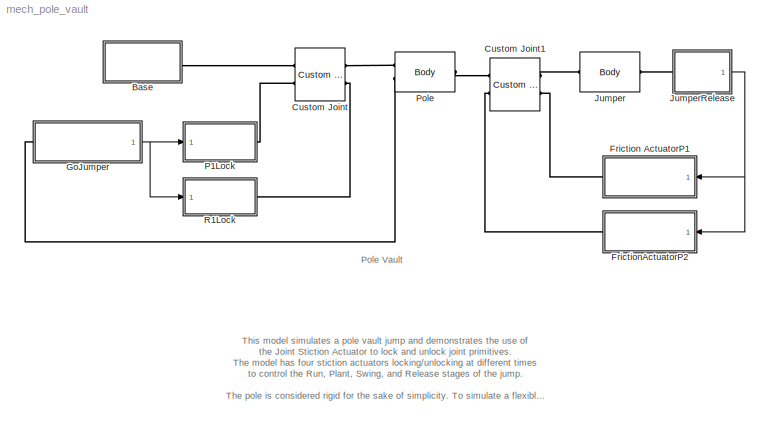
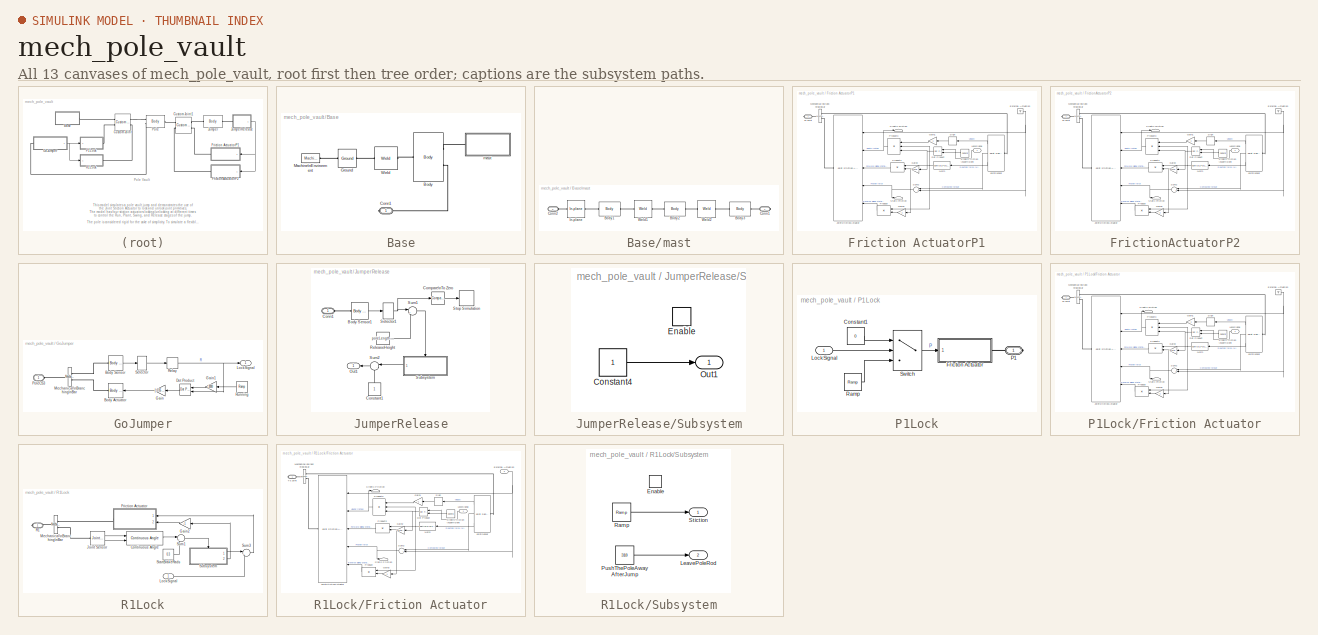
[diagram: thumbnail index - all 13 canvases of the model, root first then tree order]
MODEL mech_pole_vault
KIND model
CONFIG InitFcn = poleLength = 4; %m\npoleAngle = 60;  %deg\npoleMass = 12; %Kg\npoleInertia = [11.9 0 0;0 11.9 0;0 0 0.0024];\n%-----------------------------------------\njumperMass = 60; %Kg\njumperInertia = eye(3,3);\njumperCG = [0 -0.1 0];\n%----------------------------------------\nrunLength = 10; %m\njumpHeight = 4; %m
CONFIG PreLoadFcn = poleLength = 4; %m\npoleAngle = 60;  %deg\npoleMass = 12; %Kg\npoleInertia = [11.9 0 0;0 11.9 0;0 0 0.0024];\n%-----------------------------------------\njumperMass = 60; %Kg\njumperInertia = eye(3,3);\njumperCG = [0 -0.1 0];\n%----------------------------------------\nrunLength = 10; %m\njumpHeight = 4; %m
BLOCK [SubSystem] Base
  FunctionWithSeparateData = off
  MaskHideContents = off
  MinAlgLoopOccurrences = off
  Opaque = off
  Ports = [0, 0, 0, 0, 0, 0, 1]
  PropExecContextOutsideSubsystem = off
  RTWSystemCode = Auto
  RequestExecContextInheritance = off
BLOCK [Reference] Base/Body  REF=mblibv1/Bodies/Body
  AttachedToCS = 1
  BodyColor = [0.5 0.5 0.5]
  CG = Right$CG$[1 0 0]$CS1$CS1$m$[0 0 90]$Euler X-Y-Z$deg$WORLD$false
  CGPos = [1 0 0]
  CGRot = [0 0 90]
  CS0Pos = []
  CS0Rot = []
  CS10Pos = []
  CS10Rot = []
  CS11Pos = []
  CS11Rot = []
  CS12Pos = []
  CS12Rot = []
  CS13Pos = []
  CS13Rot = []
  CS14Pos = []
  CS14Rot = []
  CS15Pos = []
  CS15Rot = []
  CS16Pos = []
  CS16Rot = []
  CS17Pos = []
  CS17Rot = []
  CS18Pos = []
  CS18Rot = []
  CS19Pos = []
  CS19Rot = []
  CS1Pos = [0 0 0]
  CS1Rot = [0 0 0]
  CS20Pos = []
  CS20Rot = []
  CS2Pos = [0 0 0]
  CS2Rot = [0 0 0]
  CS3Pos = [-3 0 0]
  CS3Rot = [0 0 0]
  CS4Pos = [0 0 0]
  CS4Rot = [0 0 0]
  CS5Pos = [-10 0 0]
  CS5Rot = [0 0 0]
  CS6Pos = [9 0 2]
  CS6Rot = [0 0 0]
  CS7Pos = [9 0 -2]
  CS7Rot = [0 0 0]
  CS8Pos = [-10 0 2]
  CS8Rot = [0 0 0]
  CS9Pos = [-10 0 -2]
  CS9Rot = [0 0 0]
  ClassName = Body
  Density = 1
  DensityUnits = kg/m^3
  DensityUse = false
  DialogClass = MechanicalBodyBlock
  DialogController = MECH.DynMechDlgSource
  GraphicsMode = 1
  GraphicsObj = []
  Inertia = [1 0 0;0 0.01 0;0 0 1]*150
  InertiaUnits = kg*m^2
  LConnTagsString = CS1
  LeftPortType = workingframe
  Mass = 30
  MassUnits = kg
  PhysicalDomain = mechanical
  Ports = [0, 0, 0, 0, 0, 1, 2]
  RConnTagsString = CS4|CS2
  RightPortType = workingframe
  Shape = Cylinder
  ShapeDims = [1 1]
  ShapeUnits = m
  ShapeUse = false
  SourceBlock = mblibv1/Bodies/Body
  SourceType = Body
  SubClassName = Unknown
  WorkingFrames = Right$CS4$[0 0 0]$CS1$CS1$m$[0 0 0]$Euler X-Y-Z$deg$WORLD$true#Left$CS1$[0 0 0]$ADJOINING$ADJOINING$m$[0 0 0]$Euler X-Y-Z$deg$WORLD$true#Right$CS2$[0 0 0]$CS1$CS1$m$[0 0 0]$Euler X-Y-Z$deg$WORLD$true#Right$CS3$[-3 0 0]$CS1$CS1$m$[0 0 0]$Euler X-Y-Z$deg$WORLD$false#Right$CS5$[-10 0 0]$CS1$CS1$m$[0 0 0]$Euler X-Y-Z$deg$WORLD$false#Right$CS6$[9 0 2]$CS1$CS1$m$[0 0 0]$Euler X-Y-Z$deg$WORLD$false#Right...<+192ch>
BLOCK [PMIOPort] Base/Conn1
  Port = 1
  Side = Right
BLOCK [Reference] Base/Ground  REF=mblibv1/Bodies/Ground
  ClassName = Ground
  CoordPosition = [0 0 0]
  CoordPositionUnits = m
  DialogClass = GroundBlock
  DialogController = MECH.DynMechDlgSource
  FunctionWithSeparateData = off
  LeftPortType = env
  MachineId = [0 0]
  PhysicalDomain = Mechanical
  Ports = [0, 0, 0, 0, 0, 1, 1]
  RTWMemSecDataConstants = Inherit from model
  RTWMemSecDataInternal = Inherit from model
  RTWMemSecDataParameters = Inherit from model
  RTWMemSecFuncExecute = Inherit from model
  RTWMemSecFuncInitTerm = Inherit from model
  RightPortType = workingframe
  ShowEnvPort = on
  ShowPortLabels = FromPortIcon
  SourceBlock = mblibv1/Bodies/Ground
  SourceType = Ground
  StateVectorMgrId = -1
  SystemSampleTime = -1
  UserData = DataTag0
  UserDataPersistent = on
BLOCK [Reference] Base/Machine\nEnvironment  REF=mblibv1/Bodies/Machine\nEnvironment
  AnalysisType = Forward dynamics
  AngularAssemblyTolerance = 1e-3
  AngularAssemblyToleranceUnits = rad
  ClassName = Environment
  ConstraintAbsTolerance = 1e-4
  ConstraintRelTolerance = 1e-4
  ConstraintSolverType = Stabilizing
  DialogController = MECH.DialogSource
  DialogTemplateClass = MECH.MachineEnvironment
  Dimensionality = Auto-detect
  FunctionWithSeparateData = off
  Gravity = [0 -9.81 0]
  GravityAsSignal = off
  GravityUnits = m/s^2
  LinearAssemblyTolerance = 1e-3
  LinearAssemblyToleranceUnits = m
  PerturbationSize = 1e-5
  PhysicalDomain = Mechanical
  PortType = env
  Ports = [0, 0, 0, 0, 0, 0, 1]
  RTWMemSecDataConstants = Inherit from model
  RTWMemSecDataInternal = Inherit from model
  RTWMemSecDataParameters = Inherit from model
  RTWMemSecFuncExecute = Inherit from model
  RTWMemSecFuncInitTerm = Inherit from model
  RedundancyAnalysisTolerance = 1e-14
  RedundancyAnalysisToleranceType = Automatically select tolerance
  ShowPortLabels = FromPortIcon
  SourceBlock = mblibv1/Bodies/Machine\nEnvironment
  SourceType = Machine Environment
  StatePerturbationType = Fixed
  SyncWhenCopied = off
  SystemSampleTime = -1
  Tag = Factory ground
  UseRobustSingularityHandling = off
  VisualizeMachine = on
BLOCK [Reference] Base/Weld  REF=mblibv1/Joints/Weld
  ClassName = Joint
  CutJoint = off
  DialogClass = JointBlock
  DialogController = MECH.DynMechDlgSource
  LConnTagsString = __newl0
  LeftPortType = blob
  MarkAsCut = off
  NumSAPorts = 0
  PhysicalDomain = mechanical
  Ports = [0, 0, 0, 0, 0, 1, 1]
  PrimitiveProps = W$INERTIAL$[0 0 0]$weld
  Primitives = weld
  RConnTagsString = __newr0
  RightPortType = blob
  SourceBlock = mblibv1/Joints/Weld
  SourceType = Weld
  SubClassName = Unknown
  WAxis = [0 0 0]
BLOCK [SubSystem] Base/mast
  FunctionWithSeparateData = off
  MaskHideContents = off
  MinAlgLoopOccurrences = off
  Opaque = off
  Ports = [0, 0, 0, 0, 0, 1, 1]
  PropExecContextOutsideSubsystem = off
  RTWSystemCode = Auto
  RequestExecContextInheritance = off
BLOCK [Reference] Base/mast/Body1  REF=mblibv1/Bodies/Body
  AttachedToCS = 1
  BodyColor = [0.5 0.5 0.5]
  CG = Left$CG$[0 jumpHeight 0]/2$CS1$CS1$m$[0 0 0]$Euler X-Y-Z$deg$WORLD$false
  CGPos = [0 jumpHeight 0]/2
  CGRot = [0 0 0]
  CS0Pos = []
  CS0Rot = []
  CS10Pos = []
  CS10Rot = []
  CS11Pos = []
  CS11Rot = []
  CS12Pos = []
  CS12Rot = []
  CS13Pos = []
  CS13Rot = []
  CS14Pos = []
  CS14Rot = []
  CS15Pos = []
  CS15Rot = []
  CS16Pos = []
  CS16Rot = []
  CS17Pos = []
  CS17Rot = []
  CS18Pos = []
  CS18Rot = []
  CS19Pos = []
  CS19Rot = []
  CS1Pos = [-3.5 0 2]
  CS1Rot = [0 0 0]
  CS20Pos = []
  CS20Rot = []
  CS2Pos = [0 jumpHeight 0]
  CS2Rot = [0 0 0]
  CS3Pos = []
  CS3Rot = []
  CS4Pos = []
  CS4Rot = []
  CS5Pos = []
  CS5Rot = []
  CS6Pos = []
  CS6Rot = []
  CS7Pos = []
  CS7Rot = []
  CS8Pos = []
  CS8Rot = []
  CS9Pos = []
  CS9Rot = []
  ClassName = Body
  Density = 1
  DensityUnits = kg/m^3
  DensityUse = false
  DialogClass = MechanicalBodyBlock
  DialogController = MECH.DynMechDlgSource
  GraphicsMode = 1
  GraphicsObj = []
  Inertia = [1 0 0;0 0.01 0;0 0 1]*10
  InertiaUnits = kg*m^2
  LConnTagsString = CS1
  LeftPortType = workingframe
  Mass = 10
  MassUnits = kg
  PhysicalDomain = mechanical
  Ports = [0, 0, 0, 0, 0, 1, 1]
  RConnTagsString = CS2
  RightPortType = workingframe
  Shape = Cylinder
  ShapeDims = [1 1]
  ShapeUnits = m
  ShapeUse = false
  SourceBlock = mblibv1/Bodies/Body
  SourceType = Body
  SubClassName = Unknown
  WorkingFrames = Left$CS1$[-3.5 0 2]$ADJOINING$ADJOINING$m$[0 0 0]$Euler X-Y-Z$deg$WORLD$true#Right$CS2$[0 jumpHeight 0]$CS1$CS1$m$[0 0 0]$Euler X-Y-Z$deg$WORLD$true
BLOCK [Reference] Base/mast/Body2  REF=mblibv1/Bodies/Body
  AttachedToCS = 1
  BodyColor = [0.5 0.5 0.5]
  CG = Left$CG$[0 0 -2]$CS1$CS1$m$[90 0 0]$Euler X-Y-Z$deg$WORLD$false
  CGPos = [0 0 -2]
  CGRot = [90 0 0]
  CS0Pos = []
  CS0Rot = []
  CS10Pos = []
  CS10Rot = []
  CS11Pos = []
  CS11Rot = []
  CS12Pos = []
  CS12Rot = []
  CS13Pos = []
  CS13Rot = []
  CS14Pos = []
  CS14Rot = []
  CS15Pos = []
  CS15Rot = []
  CS16Pos = []
  CS16Rot = []
  CS17Pos = []
  CS17Rot = []
  CS18Pos = []
  CS18Rot = []
  CS19Pos = []
  CS19Rot = []
  CS1Pos = [0 0 0]
  CS1Rot = [0 0 0]
  CS20Pos = []
  CS20Rot = []
  CS2Pos = [0 0 -4]
  CS2Rot = [0 0 0]
  CS3Pos = []
  CS3Rot = []
  CS4Pos = []
  CS4Rot = []
  CS5Pos = []
  CS5Rot = []
  CS6Pos = []
  CS6Rot = []
  CS7Pos = []
  CS7Rot = []
  CS8Pos = []
  CS8Rot = []
  CS9Pos = []
  CS9Rot = []
  ClassName = Body
  Density = 1
  DensityUnits = kg/m^3
  DensityUse = false
  DialogClass = MechanicalBodyBlock
  DialogController = MECH.DynMechDlgSource
  GraphicsMode = 1
  GraphicsObj = []
  Inertia = [1 0 0;0 0.01 0;0 0 1]*10
  InertiaUnits = kg*m^2
  LConnTagsString = CS1
  LeftPortType = workingframe
  Mass = 10
  MassUnits = kg
  PhysicalDomain = mechanical
  Ports = [0, 0, 0, 0, 0, 1, 1]
  RConnTagsString = CS2
  RightPortType = workingframe
  Shape = Cylinder
  ShapeDims = [1 1]
  ShapeUnits = m
  ShapeUse = false
  SourceBlock = mblibv1/Bodies/Body
  SourceType = Body
  SubClassName = Unknown
  WorkingFrames = Left$CS1$[0 0 0]$ADJOINING$ADJOINING$m$[0 0 0]$Euler X-Y-Z$deg$WORLD$true#Right$CS2$[0 0 -4]$CS1$CS1$m$[0 0 0]$Euler X-Y-Z$deg$WORLD$true
BLOCK [Reference] Base/mast/Body3  REF=mblibv1/Bodies/Body
  AttachedToCS = 1
  BodyColor = [0.5 0.5 0.5]
  CG = Left$CG$[0 -jumpHeight 0]/2$CS1$CS1$m$[0 0 0]$Euler X-Y-Z$deg$WORLD$false
  CGPos = [0 -jumpHeight 0]/2
  CGRot = [0 0 0]
  CS0Pos = []
  CS0Rot = []
  CS10Pos = []
  CS10Rot = []
  CS11Pos = []
  CS11Rot = []
  CS12Pos = []
  CS12Rot = []
  CS13Pos = []
  CS13Rot = []
  CS14Pos = []
  CS14Rot = []
  CS15Pos = []
  CS15Rot = []
  CS16Pos = []
  CS16Rot = []
  CS17Pos = []
  CS17Rot = []
  CS18Pos = []
  CS18Rot = []
  CS19Pos = []
  CS19Rot = []
  CS1Pos = [0 0 0]
  CS1Rot = [0 0 0]
  CS20Pos = []
  CS20Rot = []
  CS2Pos = [0 -jumpHeight 0]
  CS2Rot = [0 0 0]
  CS3Pos = []
  CS3Rot = []
  CS4Pos = []
  CS4Rot = []
  CS5Pos = []
  CS5Rot = []
  CS6Pos = []
  CS6Rot = []
  CS7Pos = []
  CS7Rot = []
  CS8Pos = []
  CS8Rot = []
  CS9Pos = []
  CS9Rot = []
  ClassName = Body
  Density = 1
  DensityUnits = kg/m^3
  DensityUse = false
  DialogClass = MechanicalBodyBlock
  DialogController = MECH.DynMechDlgSource
  GraphicsMode = 1
  GraphicsObj = []
  Inertia = [1 0 0;0 0.01 0;0 0 1]*10
  InertiaUnits = kg*m^2
  LConnTagsString = CS1
  LeftPortType = workingframe
  Mass = 10
  MassUnits = kg
  PhysicalDomain = mechanical
  Ports = [0, 0, 0, 0, 0, 1, 1]
  RConnTagsString = CS2
  RightPortType = workingframe
  Shape = Cylinder
  ShapeDims = [1 1]
  ShapeUnits = m
  ShapeUse = false
  SourceBlock = mblibv1/Bodies/Body
  SourceType = Body
  SubClassName = Unknown
  WorkingFrames = Left$CS1$[0 0 0]$ADJOINING$ADJOINING$m$[0 0 0]$Euler X-Y-Z$deg$WORLD$true#Right$CS2$[0 -jumpHeight 0]$CS1$CS1$m$[0 0 0]$Euler X-Y-Z$deg$WORLD$true
BLOCK [PMIOPort] Base/mast/Conn1
  Port = 1
  Side = Right
BLOCK [PMIOPort] Base/mast/Conn2
  Port = 2
  Side = Left
BLOCK [Reference] Base/mast/In-plane  REF=mblibv1/Joints/In-plane
  ClassName = InplaneJoint
  CutJoint = off
  DialogClass = JointBlock
  DialogController = MECH.DynMechDlgSource
  LConnTagsString = __newl0
  LeftPortType = blob
  MarkAsCut = off
  NumSAPorts = 0
  P1Axis = [1 0 0]
  P2Axis = [0 0 1]
  PhysicalDomain = mechanical
  Ports = [0, 0, 0, 0, 0, 1, 1]
  PrimitiveProps = P1$WORLD$[1 0 0]$prismatic#P2$WORLD$[0 0 1]$prismatic
  Primitives = prismatic_prismatic
  RConnTagsString = __newr0
  RightPortType = blob
  SourceBlock = mblibv1/Joints/In-plane
  SourceType = In-plane
  SubClassName = Unknown
BLOCK [Reference] Base/mast/Weld1  REF=mblibv1/Joints/Weld
  ClassName = Joint
  CutJoint = off
  DialogClass = JointBlock
  DialogController = MECH.DynMechDlgSource
  LConnTagsString = __newl0
  LeftPortType = blob
  MarkAsCut = off
  NumSAPorts = 0
  PhysicalDomain = mechanical
  Ports = [0, 0, 0, 0, 0, 1, 1]
  PrimitiveProps = W$INERTIAL$[0 0 0]$weld
  Primitives = weld
  RConnTagsString = __newr0
  RightPortType = blob
  SourceBlock = mblibv1/Joints/Weld
  SourceType = Weld
  SubClassName = Unknown
  WAxis = [0 0 0]
BLOCK [Reference] Base/mast/Weld2  REF=mblibv1/Joints/Weld
  ClassName = Joint
  CutJoint = off
  DialogClass = JointBlock
  DialogController = MECH.DynMechDlgSource
  LConnTagsString = __newl0
  LeftPortType = blob
  MarkAsCut = off
  NumSAPorts = 0
  PhysicalDomain = mechanical
  Ports = [0, 0, 0, 0, 0, 1, 1]
  PrimitiveProps = W$INERTIAL$[0 0 0]$weld
  Primitives = weld
  RConnTagsString = __newr0
  RightPortType = blob
  SourceBlock = mblibv1/Joints/Weld
  SourceType = Weld
  SubClassName = Unknown
  WAxis = [0 0 0]
BLOCK [Reference] Custom Joint  REF=mblibv1/Joints/Custom Joint
  ClassName = Joint
  CutJoint = off
  DialogClass = JointBlock
  DialogController = MECH.DynMechDlgSource
  LConnTagsString = __newl0|SA1
  LeftPortType = blob
  MarkAsCut = off
  NumSAPorts = 2
  P1Axis = [1 0 0]
  P2Axis = []
  P3Axis = []
  PhysicalDomain = mechanical
  Ports = [0, 0, 0, 0, 0, 2, 2]
  PrimitiveProps = P1$WORLD$[1 0 0]$prismatic#R1$WORLD$[0 0 1]$revolute
  Primitives = prismatic_revolute
  R1Axis = [0 0 1]
  R2Axis = []
  R3Axis = []
  RConnTagsString = __newr0|SA1
  RightPortType = blob
  SAxis = []
  SourceBlock = mblibv1/Joints/Custom Joint
  SourceType = Custom Joint
  SubClassName = custom_joint
BLOCK [Reference] Custom Joint1  REF=mblibv1/Joints/Custom Joint
  ClassName = Joint
  CutJoint = off
  DialogClass = JointBlock
  DialogController = MECH.DynMechDlgSource
  LConnTagsString = __newl0|SA1
  LeftPortType = blob
  MarkAsCut = off
  NumSAPorts = 2
  P1Axis = [1 0 0]
  P2Axis = [0 1 0]
  P3Axis = []
  PhysicalDomain = mechanical
  Ports = [0, 0, 0, 0, 0, 2, 2]
  PrimitiveProps = R1$WORLD$[0 0 1]$revolute#P1$WORLD$[1 0 0]$prismatic#P2$WORLD$[0 1 0]$prismatic
  Primitives = revolute_prismatic_prismatic
  R1Axis = [0 0 1]
  R2Axis = []
  R3Axis = []
  RConnTagsString = __newr0|SA1
  RightPortType = blob
  SAxis = []
  SourceBlock = mblibv1/Joints/Custom Joint
  SourceType = Custom Joint
  SubClassName = custom_joint
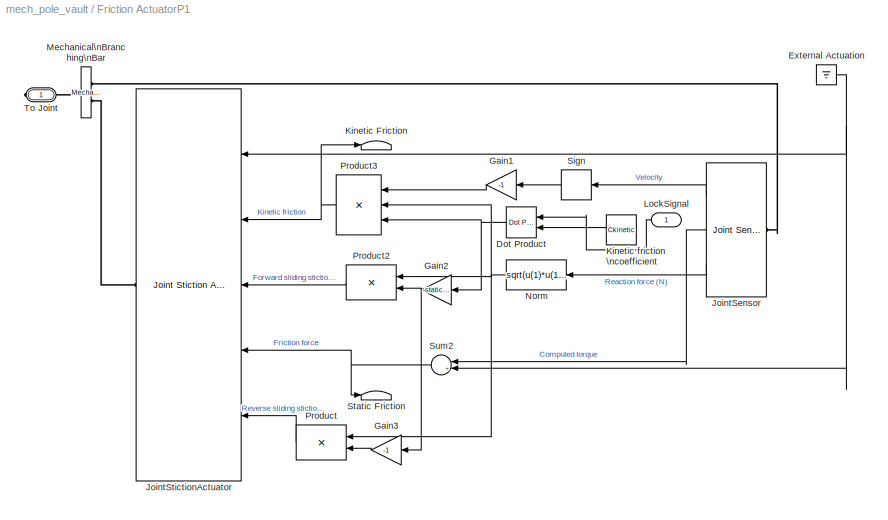
BLOCK [SubSystem] Friction ActuatorP1
  AncestorBlock = mech_friction/Normal Friction Actuator
  CopyFcn = %set_param(gcb,'LinkStatus','none');\n%set_param(gcb,'CopyFcn','');
  FunctionWithSeparateData = off
  MaskCallbackString = ||||||%populateStictionPrimitiveList(gcb);\n
  MaskDescription = Applies kinetic and static contact friction to a joint primitive. The friction force/torque is proportional to the force normal to the frictional surfaces in contact. In order for the actuated joint to be able to lock, the static friction coefficient muS must be larger than the kinetic friction coefficient muK. The friction force is mu*(normal force). The coefficient mu should be positive.\n\nConn...<+307ch>  <repeated x4 — deduplicated; at blocks: Friction ActuatorP1, FrictionActuatorP2, Friction Actuator>
  MaskEnableString = on,on,on,on,on,on,on
  MaskHideContents = off
  MaskIconFrame = on
  MaskIconOpaque = on
  MaskIconRotate = none
  MaskIconUnits = autoscale
  MaskInitialization = Csforward = staticFF*Ckinetic;\nCsreverse = staticFF*Ckinetic;\nmech_normalFrictionActuator(gcb,'setPrimitive');\nmech_normalFrictionActuator(gcb,'showHideActuatorSignal',sExtActuation);\nmech_normalFrictionActuator(gcb,'showHideFrictionForces',sForces);  <repeated x4 — deduplicated; at blocks: Friction ActuatorP1, FrictionActuatorP2, Friction Actuator>
  MaskPromptString = Kinetic friction coefficient|Static friction coefficient|Forward stiction coefficient|Reverse stiction coefficient|Show external actuation port|Show kinetic and static friction ports|Joint primitive  <repeated x4 — deduplicated; at blocks: Friction ActuatorP1, FrictionActuatorP2, Friction Actuator>
  MaskRunInitForIconRedraw = on
  MaskSelfModifiable = on
  MaskStyleString = edit,edit,edit,edit,checkbox,checkbox,popup(P1|P2|P3|R1|R2|R3)
  MaskTabNameString = ,,,,,,
  MaskToolTipString = on,on,on,on,on,on,on
  MaskTunableValueString = on,on,on,on,on,on,on
  MaskType = Normal Friction Actuator
  MaskValueString = 20|20|0.055|0.055|on|off|P1
  MaskVarAliasString = ,,,,,,
  MaskVariables = Ckinetic=@1;staticFF=@2;Csforward=@3;Csreverse=@4;sExtActuation=@5;sForces=@6;primitive=@7;
  MaskVisibilityString = on,on,off,off,off,off,on
  MinAlgLoopOccurrences = off
  Opaque = off
  Ports = [1, 0, 0, 0, 0, 0, 1]
  PropExecContextOutsideSubsystem = off
  RTWSystemCode = Auto
  RequestExecContextInheritance = off
BLOCK [Reference] Friction ActuatorP1/Dot Product  REF=simulink/Math\nOperations/Dot Product
  DoSatur = off
  InputSameDT = on
  LockScale = off
  OutDataType = sfix(16)
  OutDataTypeStr = Inherit: Inherit via internal rule
  OutScaling = 2^-10
  OutputDataTypeScalingMode = Inherit via internal rule
  Ports = [2, 1]
  RndMeth = Floor
  SourceBlock = simulink/Math\nOperations/Dot Product
  SourceType = Dot Product
BLOCK [Ground] Friction ActuatorP1/External Actuation
BLOCK [Gain] Friction ActuatorP1/Gain1
  Gain = -1
  OutDataType = sfix(16)
  OutScaling = 2^0
  ParameterDataType = sfix(16)
  ParameterScaling = 2^0
BLOCK [Gain] Friction ActuatorP1/Gain2
  Gain = -staticFF
  OutDataType = sfix(16)
  OutScaling = 2^0
  ParameterDataType = sfix(16)
  ParameterScaling = 2^0
BLOCK [Gain] Friction ActuatorP1/Gain3
  Gain = -1
  OutDataType = sfix(16)
  OutScaling = 2^0
  ParameterDataType = sfix(16)
  ParameterScaling = 2^0
BLOCK [Reference] Friction ActuatorP1/JointSensor  REF=mblibv1/Sensors & \nActuators/Joint Sensor
  Acceleration = off
  AccelerationUnits = m/s^2
  ActiveIO = on
  Angle = off
  AngleUnits = deg
  ArcAcceleration = off
  ArcAccelerationUnits = deg/s^2
  ArcVelocity = on
  ArcVelocityUnits = rad/s
  ClassName = JointSensor
  CoordPosition = off
  CoordPositionUnits = m
  DialogClass = MechanicalSensorBlock
  DialogController = MECH.DynMechDlgSource
  Force = on
  ForceUnits = N
  FunctionWithSeparateData = off
  Muxed = off
  OutputVector = [ 1 1 3 ]
  PhysicalDomain = Mechanical
  PortType = blob
  Ports = [0, 3, 0, 0, 0, 1]
  Pose = off
  Primitive = P1
  Quaternion = on
  QuaternionDDT = off
  QuaternionDT = off
  QuaternionUnits = deg
  RTWMemSecDataConstants = Inherit from model
  RTWMemSecDataInternal = Inherit from model
  RTWMemSecDataParameters = Inherit from model
  RTWMemSecFuncExecute = Inherit from model
  RTWMemSecFuncInitTerm = Inherit from model
  ReactionForce = on
  ReactionForceUnits = N
  ReactionMoment = off
  ReactionMomentUnits = N-m
  ReactionReferenceFrame = Absolute (World)
  ReactionSensedSide = Base
  ReferenceFrame = Absolute (INERTIAL)
  ShowPortLabels = FromPortIcon
  SourceBlock = mblibv1/Sensors & \nActuators/Joint Sensor
  SourceType = Joint Sensor
  SystemSampleTime = -1
  Torque = on
  TorqueUnits = N-m
  Velocity = on
  VelocityUnits = m/s
  Width = 5
BLOCK [Reference] Friction ActuatorP1/JointStictionActuator  REF=mblibv1/Sensors & \nActuators/Joint Stiction Actuator
  AccelerationUnits = m/s^2
  ActiveIO = on
  ActuationStyle = Force
  AngleUnits = deg
  ArcAccelerationUnits = deg/s^2
  ArcVelocityUnits = deg/s
  ClassName = JointStictionActuator
  CoordPositionUnits = m
  DialogClass = EventActuatorBlock
  DialogController = MECH.DynMechDlgSource
  ExternalForceUnits = N
  ExternalTorqueUnits = N-m
  ForceUnits = N
  FrictionalForceUnits = N
  FrictionalTorqueUnits = N-m
  FunctionWithSeparateData = off
  LockingTolerance = 1e-2
  PhysicalDomain = Mechanical
  PortType = blob
  Ports = [5, 0, 0, 0, 0, 0, 1]
  Primitive = P1
  RTWMemSecDataConstants = Inherit from model
  RTWMemSecDataInternal = Inherit from model
  RTWMemSecDataParameters = Inherit from model
  RTWMemSecFuncExecute = Inherit from model
  RTWMemSecFuncInitTerm = Inherit from model
  ShowPortLabels = FromPortIcon
  SourceBlock = mblibv1/Sensors & \nActuators/Joint Stiction Actuator
  SourceType = Joint Stiction Actuator
  SystemSampleTime = -1
  TorqueUnits = N-m
  VelocityUnits = m/s
  Width = 5
BLOCK [Terminator] Friction ActuatorP1/Kinetic Friction
BLOCK [Constant] Friction ActuatorP1/Kinetic friction \ncoefficient
  OutDataType = sfix(16)
  OutScaling = 2^0
  Value = Ckinetic
BLOCK [Inport] Friction ActuatorP1/LockSignal
  IconDisplay = Port number
  OutDataType = sfix(16)
  OutScaling = 2^0
BLOCK [Reference] Friction ActuatorP1/Mechanical\nBranching\nBar  REF=mblibv1/Utilities/Mechanical\nBranching\nBar
  ClassName = BranchingBar
  DialogClass = MechanicalBranchingBarBlock
  DialogController = MECH.DynMechDlgSource
  LConnTagsString = _newl0
  LeftPortType = blob
  NumSAPorts = 2
  PhysicalDomain = mechanical
  Ports = [0, 0, 0, 0, 0, 1, 2]
  RConnTagsString = SA0|SA1
  RightPortType = blob
  SourceBlock = mblibv1/Utilities/Mechanical\nBranching\nBar
  SourceType = Mechanical Branching Bar
  SubClassName = Unknown
BLOCK [Fcn] Friction ActuatorP1/Norm
  Expr = sqrt(u(1)*u(1) + u(2)*u(2) + u(3)*u(3))
BLOCK [Product] Friction ActuatorP1/Product
  OutDataType = sfix(16)
  OutScaling = 2^0
  Ports = [2, 1]
  RndMeth = Floor
BLOCK [Product] Friction ActuatorP1/Product2
  OutDataType = sfix(16)
  OutScaling = 2^0
  Ports = [2, 1]
  RndMeth = Floor
BLOCK [Product] Friction ActuatorP1/Product3
  Inputs = 3
  OutDataType = sfix(16)
  OutScaling = 2^0
  Ports = [3, 1]
  RndMeth = Floor
BLOCK [Signum] Friction ActuatorP1/Sign
  ZeroCross = off
BLOCK [Terminator] Friction ActuatorP1/Static Friction
BLOCK [Sum] Friction ActuatorP1/Sum2
  IconShape = round
  Inputs = |+-
  OutDataType = sfix(16)
  OutScaling = 2^0
  Ports = [2, 1]
BLOCK [PMIOPort] Friction ActuatorP1/To Joint
  Port = 1
  Side = Right
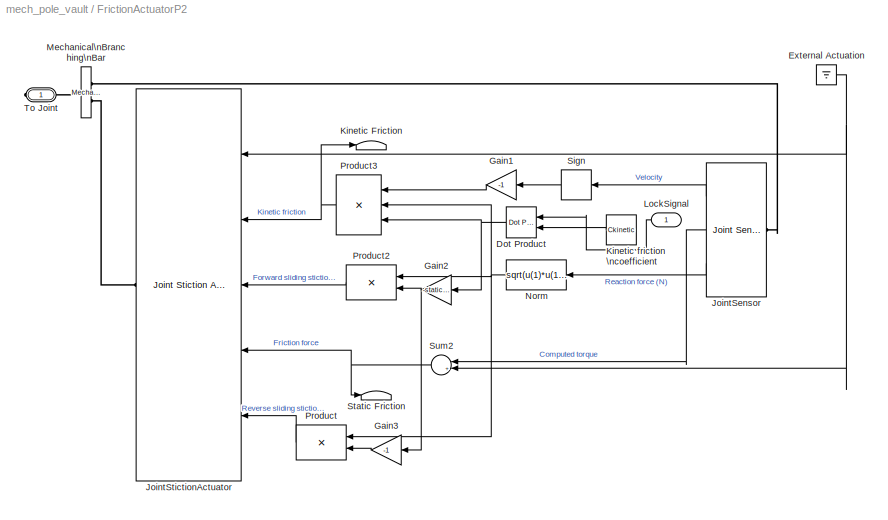
BLOCK [SubSystem] FrictionActuatorP2
  AncestorBlock = mech_friction/Normal Friction Actuator
  CopyFcn = %set_param(gcb,'LinkStatus','none');\n%set_param(gcb,'CopyFcn','');
  FunctionWithSeparateData = off
  MaskCallbackString = ||||||%populateStictionPrimitiveList(gcb);\n
  MaskEnableString = on,on,on,on,on,on,on
  MaskHideContents = off
  MaskIconFrame = on
  MaskIconOpaque = on
  MaskIconRotate = none
  MaskIconUnits = autoscale
  MaskRunInitForIconRedraw = on
  MaskSelfModifiable = on
  MaskStyleString = edit,edit,edit,edit,checkbox,checkbox,popup(P1|P2|P3|R1|R2|R3)
  MaskTabNameString = ,,,,,,
  MaskToolTipString = on,on,on,on,on,on,on
  MaskTunableValueString = on,on,on,on,on,on,on
  MaskType = Normal Friction Actuator
  MaskValueString = 20|20|0.055|0.055|on|off|P2
  MaskVarAliasString = ,,,,,,
  MaskVariables = Ckinetic=@1;staticFF=@2;Csforward=@3;Csreverse=@4;sExtActuation=@5;sForces=@6;primitive=@7;
  MaskVisibilityString = on,on,off,off,off,off,on
  MinAlgLoopOccurrences = off
  Opaque = off
  Ports = [1, 0, 0, 0, 0, 0, 1]
  PropExecContextOutsideSubsystem = off
  RTWSystemCode = Auto
  RequestExecContextInheritance = off
BLOCK [Reference] FrictionActuatorP2/Dot Product  REF=simulink/Math\nOperations/Dot Product
  DoSatur = off
  InputSameDT = on
  LockScale = off
  OutDataType = sfix(16)
  OutDataTypeStr = Inherit: Inherit via internal rule
  OutScaling = 2^-10
  OutputDataTypeScalingMode = Inherit via internal rule
  Ports = [2, 1]
  RndMeth = Floor
  SourceBlock = simulink/Math\nOperations/Dot Product
  SourceType = Dot Product
BLOCK [Ground] FrictionActuatorP2/External Actuation
BLOCK [Gain] FrictionActuatorP2/Gain1
  Gain = -1
  OutDataType = sfix(16)
  OutScaling = 2^0
  ParameterDataType = sfix(16)
  ParameterScaling = 2^0
BLOCK [Gain] FrictionActuatorP2/Gain2
  Gain = -staticFF
  OutDataType = sfix(16)
  OutScaling = 2^0
  ParameterDataType = sfix(16)
  ParameterScaling = 2^0
BLOCK [Gain] FrictionActuatorP2/Gain3
  Gain = -1
  OutDataType = sfix(16)
  OutScaling = 2^0
  ParameterDataType = sfix(16)
  ParameterScaling = 2^0
BLOCK [Reference] FrictionActuatorP2/JointSensor  REF=mblibv1/Sensors & \nActuators/Joint Sensor
  Acceleration = off
  AccelerationUnits = m/s^2
  ActiveIO = on
  Angle = off
  AngleUnits = deg
  ArcAcceleration = off
  ArcAccelerationUnits = deg/s^2
  ArcVelocity = on
  ArcVelocityUnits = rad/s
  ClassName = JointSensor
  CoordPosition = off
  CoordPositionUnits = m
  DialogClass = MechanicalSensorBlock
  DialogController = MECH.DynMechDlgSource
  Force = on
  ForceUnits = N
  FunctionWithSeparateData = off
  Muxed = off
  OutputVector = [ 1 1 3 ]
  PhysicalDomain = Mechanical
  PortType = blob
  Ports = [0, 3, 0, 0, 0, 1]
  Pose = off
  Primitive = P2
  Quaternion = on
  QuaternionDDT = off
  QuaternionDT = off
  QuaternionUnits = deg
  RTWMemSecDataConstants = Inherit from model
  RTWMemSecDataInternal = Inherit from model
  RTWMemSecDataParameters = Inherit from model
  RTWMemSecFuncExecute = Inherit from model
  RTWMemSecFuncInitTerm = Inherit from model
  ReactionForce = on
  ReactionForceUnits = N
  ReactionMoment = off
  ReactionMomentUnits = N-m
  ReactionReferenceFrame = Absolute (World)
  ReactionSensedSide = Base
  ReferenceFrame = Absolute (INERTIAL)
  ShowPortLabels = FromPortIcon
  SourceBlock = mblibv1/Sensors & \nActuators/Joint Sensor
  SourceType = Joint Sensor
  SystemSampleTime = -1
  Torque = on
  TorqueUnits = N-m
  Velocity = on
  VelocityUnits = m/s
  Width = 5
BLOCK [Reference] FrictionActuatorP2/JointStictionActuator  REF=mblibv1/Sensors & \nActuators/Joint Stiction Actuator
  AccelerationUnits = m/s^2
  ActiveIO = on
  ActuationStyle = Force
  AngleUnits = deg
  ArcAccelerationUnits = deg/s^2
  ArcVelocityUnits = deg/s
  ClassName = JointStictionActuator
  CoordPositionUnits = m
  DialogClass = EventActuatorBlock
  DialogController = MECH.DynMechDlgSource
  ExternalForceUnits = N
  ExternalTorqueUnits = N-m
  ForceUnits = N
  FrictionalForceUnits = N
  FrictionalTorqueUnits = N-m
  FunctionWithSeparateData = off
  LockingTolerance = 1e-2
  PhysicalDomain = Mechanical
  PortType = blob
  Ports = [5, 0, 0, 0, 0, 0, 1]
  Primitive = P2
  RTWMemSecDataConstants = Inherit from model
  RTWMemSecDataInternal = Inherit from model
  RTWMemSecDataParameters = Inherit from model
  RTWMemSecFuncExecute = Inherit from model
  RTWMemSecFuncInitTerm = Inherit from model
  ShowPortLabels = FromPortIcon
  SourceBlock = mblibv1/Sensors & \nActuators/Joint Stiction Actuator
  SourceType = Joint Stiction Actuator
  SystemSampleTime = -1
  TorqueUnits = N-m
  VelocityUnits = m/s
  Width = 5
BLOCK [Terminator] FrictionActuatorP2/Kinetic Friction
BLOCK [Constant] FrictionActuatorP2/Kinetic friction \ncoefficient
  OutDataType = sfix(16)
  OutScaling = 2^0
  Value = Ckinetic
BLOCK [Inport] FrictionActuatorP2/LockSignal
  IconDisplay = Port number
  OutDataType = sfix(16)
  OutScaling = 2^0
BLOCK [Reference] FrictionActuatorP2/Mechanical\nBranching\nBar  REF=mblibv1/Utilities/Mechanical\nBranching\nBar
  ClassName = BranchingBar
  DialogClass = MechanicalBranchingBarBlock
  DialogController = MECH.DynMechDlgSource
  LConnTagsString = _newl0
  LeftPortType = blob
  NumSAPorts = 2
  PhysicalDomain = mechanical
  Ports = [0, 0, 0, 0, 0, 1, 2]
  RConnTagsString = SA0|SA1
  RightPortType = blob
  SourceBlock = mblibv1/Utilities/Mechanical\nBranching\nBar
  SourceType = Mechanical Branching Bar
  SubClassName = Unknown
BLOCK [Fcn] FrictionActuatorP2/Norm
  Expr = sqrt(u(1)*u(1) + u(2)*u(2) + u(3)*u(3))
BLOCK [Product] FrictionActuatorP2/Product
  OutDataType = sfix(16)
  OutScaling = 2^0
  Ports = [2, 1]
  RndMeth = Floor
BLOCK [Product] FrictionActuatorP2/Product2
  OutDataType = sfix(16)
  OutScaling = 2^0
  Ports = [2, 1]
  RndMeth = Floor
BLOCK [Product] FrictionActuatorP2/Product3
  Inputs = 3
  OutDataType = sfix(16)
  OutScaling = 2^0
  Ports = [3, 1]
  RndMeth = Floor
BLOCK [Signum] FrictionActuatorP2/Sign
  ZeroCross = off
BLOCK [Terminator] FrictionActuatorP2/Static Friction
BLOCK [Sum] FrictionActuatorP2/Sum2
  IconShape = round
  Inputs = |+-
  OutDataType = sfix(16)
  OutScaling = 2^0
  Ports = [2, 1]
BLOCK [PMIOPort] FrictionActuatorP2/To Joint
  Port = 1
  Side = Right
BLOCK [SubSystem] GoJumper
  FunctionWithSeparateData = off
  MaskHideContents = off
  MinAlgLoopOccurrences = off
  Opaque = off
  Ports = [0, 1, 0, 0, 0, 1]
  PropExecContextOutsideSubsystem = off
  RTWSystemCode = Auto
  RequestExecContextInheritance = off
BLOCK [Reference] GoJumper/Body Actuator  REF=mblibv1/Sensors & \nActuators/Body Actuator
  AccelerationUnits = m/s^2
  ActiveIO = on
  ActuationStyle = Force
  Angle = off
  AngleUnits = deg
  ArcAccelerationUnits = deg/s^2
  ArcVelocityUnits = deg/s
  ClassName = BodyActuatorForceTorque
  CoordPosition = on
  CoordPositionUnits = m
  DialogClass = MechanicalActuatorBlock
  DialogController = MECH.DynMechDlgSource
  Force = on
  ForceUnits = N
  FunctionWithSeparateData = off
  PhysicalDomain = Mechanical
  PortType = blob
  Ports = [1, 0, 0, 0, 0, 0, 1]
  RTWMemSecDataConstants = Inherit from model
  RTWMemSecDataInternal = Inherit from model
  RTWMemSecDataParameters = Inherit from model
  RTWMemSecFuncExecute = Inherit from model
  RTWMemSecFuncInitTerm = Inherit from model
  ReferenceFrame = Absolute (World)
  ShowPortLabels = FromPortIcon
  SourceBlock = mblibv1/Sensors & \nActuators/Body Actuator
  SourceType = Body Actuator
  SystemSampleTime = -1
  Torque = off
  TorqueUnits = N-m
  VelocityUnits = m/s
  Width = 3
BLOCK [Reference] GoJumper/Body Sensor  REF=mblibv1/Sensors & \nActuators/Body Sensor
  Acceleration = off
  AccelerationUnits = m/s^2
  ActiveIO = on
  Angle = on
  AngleUnits = deg
  ArcAcceleration = off
  ArcAccelerationUnits = deg/s^2
  ArcVelocity = off
  ArcVelocityUnits = deg/s
  ClassName = BodySensor
  CoordPosition = on
  CoordPositionUnits = m
  DialogClass = MechanicalSensorBlock
  DialogController = MECH.DynMechDlgSource
  FunctionWithSeparateData = off
  Muxed = off
  OutputVector = [ 3 ]
  PhysicalDomain = Mechanical
  PortType = blob
  Ports = [0, 1, 0, 0, 0, 1]
  Pose = off
  Quaternion = on
  QuaternionDDT = off
  QuaternionDT = off
  QuaternionUnits = off
  RTWMemSecDataConstants = Inherit from model
  RTWMemSecDataInternal = Inherit from model
  RTWMemSecDataParameters = Inherit from model
  RTWMemSecFuncExecute = Inherit from model
  RTWMemSecFuncInitTerm = Inherit from model
  ReferenceFrame = Absolute (World)
  ShowPortLabels = FromPortIcon
  SourceBlock = mblibv1/Sensors & \nActuators/Body Sensor
  SourceType = Body Sensor
  SystemSampleTime = -1
  Velocity = off
  VelocityUnits = m/s
  Width = 3
BLOCK [Reference] GoJumper/Dot Product  REF=simulink/Math\nOperations/Dot Product
  DoSatur = off
  InputSameDT = on
  LockScale = off
  OutDataType = sfix(16)
  OutDataTypeStr = Inherit: Inherit via internal rule
  OutScaling = 2^-10
  OutputDataTypeScalingMode = Inherit via internal rule
  Ports = [2, 1]
  RndMeth = Floor
  SourceBlock = simulink/Math\nOperations/Dot Product
  SourceType = Dot Product
BLOCK [Gain] GoJumper/Gain
  Gain = [-0.05 0 0]
  OutDataType = sfix(16)
  OutDataTypeMode = Inherit via internal rule
  OutDataTypeStr = Inherit: Inherit via internal rule
  OutScaling = 2^0
  ParamDataTypeStr = Inherit: Inherit via internal rule
  ParameterDataType = sfix(16)
  ParameterDataTypeMode = Inherit via internal rule
  ParameterScaling = 2^0
  SaturateOnIntegerOverflow = off
BLOCK [Gain] GoJumper/Gain1
  Gain = 2000
  OutDataType = sfix(16)
  OutDataTypeMode = Inherit via internal rule
  OutDataTypeStr = Inherit: Inherit via internal rule
  OutScaling = 2^0
  ParamDataTypeStr = Inherit: Inherit via internal rule
  ParameterDataType = sfix(16)
  ParameterDataTypeMode = Inherit via internal rule
  ParameterScaling = 2^0
  SaturateOnIntegerOverflow = off
BLOCK [Outport] GoJumper/LockSignal
  IconDisplay = Port number
  InitialOutput = 0
  OutDataType = sfix(16)
  OutScaling = 2^0
BLOCK [Reference] GoJumper/Mechanical\nBranching\nBar  REF=mblibv1/Utilities/Mechanical\nBranching\nBar
  ClassName = BranchingBar
  DialogClass = MechanicalBranchingBarBlock
  DialogController = MECH.DynMechDlgSource
  LConnTagsString = _newl0
  LeftPortType = blob
  NumSAPorts = 2
  PhysicalDomain = mechanical
  Ports = [0, 0, 0, 0, 0, 1, 2]
  RConnTagsString = SA0|SA1
  RightPortType = blob
  SourceBlock = mblibv1/Utilities/Mechanical\nBranching\nBar
  SourceType = Mechanical Branching Bar
  SubClassName = Unknown
BLOCK [PMIOPort] GoJumper/PoleCS3
  Port = 1
  Side = Left
  Tag = PMCPort
BLOCK [Relay] GoJumper/Relay
  OffSwitchValue = 0
  OnSwitchValue = runLength
  OutDataType = sfix(16)
  OutScaling = 2^0
BLOCK [Reference] GoJumper/Running  REF=simulink/Sources/Ramp
  FunctionWithSeparateData = off
  Ports = [0, 1]
  RTWMemSecDataConstants = Inherit from model
  RTWMemSecDataInternal = Inherit from model
  RTWMemSecDataParameters = Inherit from model
  RTWMemSecFuncExecute = Inherit from model
  RTWMemSecFuncInitTerm = Inherit from model
  ShowPortLabels = FromPortIcon
  SourceBlock = simulink/Sources/Ramp
  SourceType = Ramp
  SystemSampleTime = -1
  VectorParams1D = on
  X0 = 1
  slope = 2
  start = 0
BLOCK [Selector] GoJumper/Selector
  IndexOptions = Index vector (dialog)
  Indices = [1]
  InputPortWidth = 3
  OutputSizes = 1
  Ports = [1, 1]
BLOCK [Reference] Jumper  REF=mblibv1/Bodies/Body
  AttachedToCS = 1
  BodyColor = [0.5 0.5 0.5]
  CG = Right$CG$[0 -0.1 0]$CS1$CS1$m$[0 0 0]$Euler X-Y-Z$deg$WORLD$true
  CGPos = [0 -0.1 0]
  CGRot = [0 0 0]
  CS0Pos = []
  CS0Rot = []
  CS10Pos = []
  CS10Rot = []
  CS11Pos = []
  CS11Rot = []
  CS12Pos = []
  CS12Rot = []
  CS13Pos = []
  CS13Rot = []
  CS14Pos = []
  CS14Rot = []
  CS15Pos = []
  CS15Rot = []
  CS16Pos = []
  CS16Rot = []
  CS17Pos = []
  CS17Rot = []
  CS18Pos = []
  CS18Rot = []
  CS19Pos = []
  CS19Rot = []
  CS1Pos = [0 0 0]
  CS1Rot = [0 0 0]
  CS20Pos = []
  CS20Rot = []
  CS2Pos = [0 0 0]
  CS2Rot = [0 0 0]
  CS3Pos = []
  CS3Rot = []
  CS4Pos = []
  CS4Rot = []
  CS5Pos = []
  CS5Rot = []
  CS6Pos = []
  CS6Rot = []
  CS7Pos = []
  CS7Rot = []
  CS8Pos = []
  CS8Rot = []
  CS9Pos = []
  CS9Rot = []
  ClassName = Body
  Density = 1
  DensityUnits = kg/m^3
  DensityUse = false
  DialogClass = MechanicalBodyBlock
  DialogController = MECH.DynMechDlgSource
  GraphicsMode = 1
  GraphicsObj = []
  Inertia = jumperInertia*1
  InertiaUnits = kg*m^2
  LConnTagsString = CS1
  LeftPortType = workingframe
  Mass = jumperMass
  MassUnits = kg
  PhysicalDomain = mechanical
  Ports = [0, 0, 0, 0, 0, 1, 1]
  RConnTagsString = CG
  RightPortType = workingframe
  Shape = Cylinder
  ShapeDims = [1 1]
  ShapeUnits = m
  ShapeUse = false
  SourceBlock = mblibv1/Bodies/Body
  SourceType = Body
  SubClassName = Unknown
  WorkingFrames = Left$CS1$[0 0 0]$ADJOINING$ADJOINING$m$[0 0 0]$Euler X-Y-Z$deg$WORLD$true#Right$CS2$[0 0 0]$CS1$CS1$m$[0 0 0]$Euler X-Y-Z$deg$WORLD$false
BLOCK [SubSystem] JumperRelease
  FunctionWithSeparateData = off
  MaskHideContents = off
  MinAlgLoopOccurrences = off
  Opaque = off
  Ports = [0, 1, 0, 0, 0, 1]
  PropExecContextOutsideSubsystem = off
  RTWSystemCode = Auto
  RequestExecContextInheritance = off
BLOCK [Reference] JumperRelease/Body Sensor1  REF=mblibv1/Sensors & \nActuators/Body Sensor
  Acceleration = off
  AccelerationUnits = m/s^2
  ActiveIO = on
  Angle = on
  AngleUnits = deg
  ArcAcceleration = off
  ArcAccelerationUnits = deg/s^2
  ArcVelocity = off
  ArcVelocityUnits = deg/s
  ClassName = BodySensor
  CoordPosition = on
  CoordPositionUnits = m
  DialogClass = MechanicalSensorBlock
  DialogController = MECH.DynMechDlgSource
  FunctionWithSeparateData = off
  Muxed = off
  OutputVector = [ 3 ]
  PhysicalDomain = Mechanical
  PortType = blob
  Ports = [0, 1, 0, 0, 0, 1]
  Pose = off
  Quaternion = on
  QuaternionDDT = off
  QuaternionDT = off
  QuaternionUnits = off
  RTWMemSecDataConstants = Inherit from model
  RTWMemSecDataInternal = Inherit from model
  RTWMemSecDataParameters = Inherit from model
  RTWMemSecFuncExecute = Inherit from model
  RTWMemSecFuncInitTerm = Inherit from model
  ReferenceFrame = Absolute (World)
  ShowPortLabels = FromPortIcon
  SourceBlock = mblibv1/Sensors & \nActuators/Body Sensor
  SourceType = Body Sensor
  SystemSampleTime = -1
  Velocity = off
  VelocityUnits = m/s
  Width = 3
BLOCK [Reference] JumperRelease/Compare\nTo Zero  REF=simulink/Logic and Bit\nOperations/Compare\nTo Zero
  FunctionWithSeparateData = off
  LogicOutDataTypeMode = boolean
  Ports = [1, 1]
  RTWMemSecDataConstants = Inherit from model
  RTWMemSecDataInternal = Inherit from model
  RTWMemSecDataParameters = Inherit from model
  RTWMemSecFuncExecute = Inherit from model
  RTWMemSecFuncInitTerm = Inherit from model
  ShowPortLabels = FromPortIcon
  SourceBlock = simulink/Logic and Bit\nOperations/Compare\nTo Zero
  SourceType = Compare To Zero
  SystemSampleTime = -1
  ZeroCross = on
  relop = <=
BLOCK [PMIOPort] JumperRelease/Conn1
  Port = 1
  Side = Left
BLOCK [Constant] JumperRelease/Constant1
  OutDataType = sfix(16)
  OutScaling = 2^0
BLOCK [Outport] JumperRelease/Out1
  IconDisplay = Port number
  OutDataType = sfix(16)
  OutScaling = 2^0
BLOCK [Constant] JumperRelease/ReleaseHeight
  OutDataType = sfix(16)
  OutScaling = 2^0
  Value = poleLength-poleLength*0.01;
BLOCK [Selector] JumperRelease/Selector1
  IndexOptions = Index vector (dialog)
  Indices = [2]
  InputPortWidth = 3
  OutputSizes = 1
  Ports = [1, 1]
BLOCK [Stop] JumperRelease/Stop Simulation
BLOCK [SubSystem] JumperRelease/Subsystem
  FunctionWithSeparateData = off
  MaskHideContents = off
  MinAlgLoopOccurrences = off
  Opaque = off
  Ports = [0, 1, 1]
  PropExecContextOutsideSubsystem = off
  RTWSystemCode = Auto
  RequestExecContextInheritance = off
  TreatAsAtomicUnit = on
BLOCK [Constant] JumperRelease/Subsystem/Constant4
  OutDataType = sfix(16)
  OutScaling = 2^0
BLOCK [EnablePort] JumperRelease/Subsystem/Enable
  Ports = []
BLOCK [Outport] JumperRelease/Subsystem/Out1
  IconDisplay = Port number
  InitialOutput = 0
  OutDataType = sfix(16)
  OutScaling = 2^0
BLOCK [Sum] JumperRelease/Sum1
  IconShape = round
  InputSameDT = off
  Inputs = |+-
  OutDataType = sfix(16)
  OutDataTypeMode = Inherit via internal rule
  OutDataTypeStr = Inherit: Inherit via internal rule
  OutScaling = 2^0
  Ports = [2, 1]
BLOCK [Sum] JumperRelease/Sum2
  IconShape = round
  InputSameDT = off
  Inputs = |-+
  OutDataType = sfix(16)
  OutDataTypeMode = Inherit via internal rule
  OutDataTypeStr = Inherit: Inherit via internal rule
  OutScaling = 2^0
  Ports = [2, 1]
BLOCK [SubSystem] P1Lock
  FunctionWithSeparateData = off
  MaskHideContents = off
  MinAlgLoopOccurrences = off
  Opaque = off
  Ports = [1, 0, 0, 0, 0, 0, 1]
  PropExecContextOutsideSubsystem = off
  RTWSystemCode = Auto
  RequestExecContextInheritance = off
BLOCK [Constant] P1Lock/Constant1
  OutDataType = sfix(16)
  OutScaling = 2^0
  Value = 0
BLOCK [SubSystem] P1Lock/Friction Actuator
  AncestorBlock = mech_friction/Normal Friction Actuator
  CopyFcn = %set_param(gcb,'LinkStatus','none');\n%set_param(gcb,'CopyFcn','');
  FunctionWithSeparateData = off
  MaskCallbackString = ||||||%populateStictionPrimitiveList(gcb);\n
  MaskEnableString = on,on,on,on,on,on,on
  MaskHideContents = off
  MaskIconFrame = on
  MaskIconOpaque = on
  MaskIconRotate = none
  MaskIconUnits = autoscale
  MaskRunInitForIconRedraw = on
  MaskSelfModifiable = on
  MaskStyleString = edit,edit,edit,edit,checkbox,checkbox,popup(P1|P2|P3|R1|R2|R3)
  MaskTabNameString = ,,,,,,
  MaskToolTipString = on,on,on,on,on,on,on
  MaskTunableValueString = on,on,on,on,on,on,on
  MaskType = Normal Friction Actuator
  MaskValueString = 1|5|0.055|0.055|on|off|P1
  MaskVarAliasString = ,,,,,,
  MaskVariables = Ckinetic=@1;staticFF=@2;Csforward=@3;Csreverse=@4;sExtActuation=@5;sForces=@6;primitive=@7;
  MaskVisibilityString = on,on,off,off,off,off,on
  MinAlgLoopOccurrences = off
  Opaque = off
  Ports = [1, 0, 0, 0, 0, 0, 1]
  PropExecContextOutsideSubsystem = off
  RTWSystemCode = Auto
  RequestExecContextInheritance = off
BLOCK [Reference] P1Lock/Friction Actuator/Dot Product  REF=simulink/Math\nOperations/Dot Product
  DoSatur = off
  InputSameDT = on
  LockScale = off
  OutDataType = sfix(16)
  OutDataTypeStr = Inherit: Inherit via internal rule
  OutScaling = 2^-10
  OutputDataTypeScalingMode = Inherit via internal rule
  Ports = [2, 1]
  RndMeth = Floor
  SourceBlock = simulink/Math\nOperations/Dot Product
  SourceType = Dot Product
BLOCK [Ground] P1Lock/Friction Actuator/External Actuation
BLOCK [Gain] P1Lock/Friction Actuator/Gain1
  Gain = -1
  OutDataType = sfix(16)
  OutScaling = 2^0
  ParameterDataType = sfix(16)
  ParameterScaling = 2^0
BLOCK [Gain] P1Lock/Friction Actuator/Gain2
  Gain = -staticFF
  OutDataType = sfix(16)
  OutScaling = 2^0
  ParameterDataType = sfix(16)
  ParameterScaling = 2^0
BLOCK [Gain] P1Lock/Friction Actuator/Gain3
  Gain = -1
  OutDataType = sfix(16)
  OutScaling = 2^0
  ParameterDataType = sfix(16)
  ParameterScaling = 2^0
BLOCK [Reference] P1Lock/Friction Actuator/JointSensor  REF=mblibv1/Sensors & \nActuators/Joint Sensor
  Acceleration = off
  AccelerationUnits = m/s^2
  ActiveIO = on
  Angle = off
  AngleUnits = deg
  ArcAcceleration = off
  ArcAccelerationUnits = deg/s^2
  ArcVelocity = on
  ArcVelocityUnits = rad/s
  ClassName = JointSensor
  CoordPosition = off
  CoordPositionUnits = m
  DialogClass = MechanicalSensorBlock
  DialogController = MECH.DynMechDlgSource
  Force = on
  ForceUnits = N
  FunctionWithSeparateData = off
  Muxed = off
  OutputVector = [ 1 1 3 ]
  PhysicalDomain = Mechanical
  PortType = blob
  Ports = [0, 3, 0, 0, 0, 1]
  Pose = off
  Primitive = P1
  Quaternion = on
  QuaternionDDT = off
  QuaternionDT = off
  QuaternionUnits = deg
  RTWMemSecDataConstants = Inherit from model
  RTWMemSecDataInternal = Inherit from model
  RTWMemSecDataParameters = Inherit from model
  RTWMemSecFuncExecute = Inherit from model
  RTWMemSecFuncInitTerm = Inherit from model
  ReactionForce = on
  ReactionForceUnits = N
  ReactionMoment = off
  ReactionMomentUnits = N-m
  ReactionReferenceFrame = Absolute (World)
  ReactionSensedSide = Base
  ReferenceFrame = Absolute (INERTIAL)
  ShowPortLabels = FromPortIcon
  SourceBlock = mblibv1/Sensors & \nActuators/Joint Sensor
  SourceType = Joint Sensor
  SystemSampleTime = -1
  Torque = on
  TorqueUnits = N-m
  Velocity = on
  VelocityUnits = m/s
  Width = 5
BLOCK [Reference] P1Lock/Friction Actuator/JointStictionActuator  REF=mblibv1/Sensors & \nActuators/Joint Stiction Actuator
  AccelerationUnits = m/s^2
  ActiveIO = on
  ActuationStyle = Force
  AngleUnits = deg
  ArcAccelerationUnits = deg/s^2
  ArcVelocityUnits = deg/s
  ClassName = JointStictionActuator
  CoordPositionUnits = m
  DialogClass = EventActuatorBlock
  DialogController = MECH.DynMechDlgSource
  ExternalForceUnits = N
  ExternalTorqueUnits = N-m
  ForceUnits = N
  FrictionalForceUnits = N
  FrictionalTorqueUnits = N-m
  FunctionWithSeparateData = off
  LockingTolerance = 1e-2
  PhysicalDomain = Mechanical
  PortType = blob
  Ports = [5, 0, 0, 0, 0, 0, 1]
  Primitive = P1
  RTWMemSecDataConstants = Inherit from model
  RTWMemSecDataInternal = Inherit from model
  RTWMemSecDataParameters = Inherit from model
  RTWMemSecFuncExecute = Inherit from model
  RTWMemSecFuncInitTerm = Inherit from model
  ShowPortLabels = FromPortIcon
  SourceBlock = mblibv1/Sensors & \nActuators/Joint Stiction Actuator
  SourceType = Joint Stiction Actuator
  SystemSampleTime = -1
  TorqueUnits = N-m
  VelocityUnits = m/s
  Width = 5
BLOCK [Terminator] P1Lock/Friction Actuator/Kinetic Friction
BLOCK [Constant] P1Lock/Friction Actuator/Kinetic friction \ncoefficient
  OutDataType = sfix(16)
  OutScaling = 2^0
  Value = Ckinetic
BLOCK [Inport] P1Lock/Friction Actuator/LockSignal
  IconDisplay = Port number
  OutDataType = sfix(16)
  OutScaling = 2^0
BLOCK [Reference] P1Lock/Friction Actuator/Mechanical\nBranching\nBar  REF=mblibv1/Utilities/Mechanical\nBranching\nBar
  ClassName = BranchingBar
  DialogClass = MechanicalBranchingBarBlock
  DialogController = MECH.DynMechDlgSource
  LConnTagsString = _newl0
  LeftPortType = blob
  NumSAPorts = 2
  PhysicalDomain = mechanical
  Ports = [0, 0, 0, 0, 0, 1, 2]
  RConnTagsString = SA0|SA1
  RightPortType = blob
  SourceBlock = mblibv1/Utilities/Mechanical\nBranching\nBar
  SourceType = Mechanical Branching Bar
  SubClassName = Unknown
BLOCK [Fcn] P1Lock/Friction Actuator/Norm
  Expr = sqrt(u(1)*u(1) + u(2)*u(2) + u(3)*u(3))
BLOCK [Product] P1Lock/Friction Actuator/Product
  OutDataType = sfix(16)
  OutScaling = 2^0
  Ports = [2, 1]
  RndMeth = Floor
BLOCK [Product] P1Lock/Friction Actuator/Product2
  OutDataType = sfix(16)
  OutScaling = 2^0
  Ports = [2, 1]
  RndMeth = Floor
BLOCK [Product] P1Lock/Friction Actuator/Product3
  Inputs = 3
  OutDataType = sfix(16)
  OutScaling = 2^0
  Ports = [3, 1]
  RndMeth = Floor
BLOCK [Signum] P1Lock/Friction Actuator/Sign
  ZeroCross = off
BLOCK [Terminator] P1Lock/Friction Actuator/Static Friction
BLOCK [Sum] P1Lock/Friction Actuator/Sum2
  IconShape = round
  Inputs = |+-
  OutDataType = sfix(16)
  OutScaling = 2^0
  Ports = [2, 1]
BLOCK [PMIOPort] P1Lock/Friction Actuator/To Joint
  Port = 1
  Side = Right
BLOCK [Inport] P1Lock/LockSignal
  IconDisplay = Port number
  OutDataType = sfix(16)
  OutScaling = 2^0
BLOCK [PMIOPort] P1Lock/P1
  Port = 1
  Side = Right
BLOCK [Reference] P1Lock/Ramp  REF=simulink/Sources/Ramp
  FunctionWithSeparateData = off
  Ports = [0, 1]
  RTWMemSecDataConstants = Inherit from model
  RTWMemSecDataInternal = Inherit from model
  RTWMemSecDataParameters = Inherit from model
  RTWMemSecFuncExecute = Inherit from model
  RTWMemSecFuncInitTerm = Inherit from model
  ShowPortLabels = FromPortIcon
  SourceBlock = simulink/Sources/Ramp
  SourceType = Ramp
  SystemSampleTime = -1
  VectorParams1D = on
  X0 = 0
  slope = 1
  start = 2
BLOCK [Switch] P1Lock/Switch
  InputSameDT = off
  SaturateOnIntegerOverflow = off
  Threshold = 1
BLOCK [Reference] Pole  REF=mblibv1/Bodies/Body
  AttachedToCS = 1
  BodyColor = [0.5 0.5 0.5]
  CG = Left$CG$[poleLength 0 0]/2$CS1$CS1$m$[0 90 0]$Euler X-Y-Z$deg$CS1$false
  CGPos = [poleLength 0 0]/2
  CGRot = [0 90 0]
  CS0Pos = []
  CS0Rot = []
  CS10Pos = []
  CS10Rot = []
  CS11Pos = []
  CS11Rot = []
  CS12Pos = []
  CS12Rot = []
  CS13Pos = []
  CS13Rot = []
  CS14Pos = []
  CS14Rot = []
  CS15Pos = []
  CS15Rot = []
  CS16Pos = []
  CS16Rot = []
  CS17Pos = []
  CS17Rot = []
  CS18Pos = []
  CS18Rot = []
  CS19Pos = []
  CS19Rot = []
  CS1Pos = [runLength 0 0]
  CS1Rot = [0 0 poleAngle]
  CS20Pos = []
  CS20Rot = []
  CS2Pos = [poleLength 0 0]
  CS2Rot = [0 0 0]
  CS3Pos = [0 0 0]
  CS3Rot = [0 0 0]
  CS4Pos = []
  CS4Rot = []
  CS5Pos = []
  CS5Rot = []
  CS6Pos = []
  CS6Rot = []
  CS7Pos = []
  CS7Rot = []
  CS8Pos = []
  CS8Rot = []
  CS9Pos = []
  CS9Rot = []
  ClassName = Body
  Density = 1
  DensityUnits = kg/m^3
  DensityUse = false
  DialogClass = MechanicalBodyBlock
  DialogController = MECH.DynMechDlgSource
  GraphicsMode = 1
  GraphicsObj = []
  Inertia = poleInertia
  InertiaUnits = kg*m^2
  LConnTagsString = CS1|CS3
  LeftPortType = workingframe
  Mass = poleMass
  MassUnits = kg
  PhysicalDomain = mechanical
  Ports = [0, 0, 0, 0, 0, 2, 1]
  RConnTagsString = CS2
  RightPortType = workingframe
  Shape = Cylinder
  ShapeDims = [1 1]
  ShapeUnits = m
  ShapeUse = false
  SourceBlock = mblibv1/Bodies/Body
  SourceType = Body
  SubClassName = Unknown
  WorkingFrames = Left$CS1$[runLength 0 0]$WORLD$WORLD$m$[0 0 poleAngle]$Euler X-Y-Z$deg$WORLD$true#Left$CS3$[0 0 0]$CS1$CS1$m$[0 0 0]$Euler X-Y-Z$deg$WORLD$true#Right$CS2$[poleLength 0 0]$CS1$CS1$m$[0 0 0]$Euler X-Y-Z$deg$CS1$true
BLOCK [SubSystem] R1Lock
  FunctionWithSeparateData = off
  MaskHideContents = off
  MinAlgLoopOccurrences = off
  Opaque = off
  Ports = [1, 0, 0, 0, 0, 0, 1]
  PropExecContextOutsideSubsystem = off
  RTWSystemCode = Auto
  RequestExecContextInheritance = off
BLOCK [Reference] R1Lock/Continuous Angle  REF=mblibv1/Utilities/Continuous Angle
  FunctionWithSeparateData = off
  Ports = [2, 1]
  RTWMemSecDataConstants = Inherit from model
  RTWMemSecDataInternal = Inherit from model
  RTWMemSecDataParameters = Inherit from model
  RTWMemSecFuncExecute = Inherit from model
  RTWMemSecFuncInitTerm = Inherit from model
  ShowPortLabels = FromPortIcon
  SourceBlock = mblibv1/Utilities/Continuous Angle
  SourceType = Continuous Angle
  SystemSampleTime = -1
  Tag = Factory continuousAngle
  rad = rad
  rads = rad/s
BLOCK [SubSystem] R1Lock/Friction Actuator
  AncestorBlock = mech_friction/Normal Friction Actuator
  CopyFcn = %set_param(gcb,'LinkStatus','none');\n%set_param(gcb,'CopyFcn','');
  FunctionWithSeparateData = off
  MaskCallbackString = ||||||%populateStictionPrimitiveList(gcb);\n
  MaskEnableString = on,on,on,on,on,on,on
  MaskHideContents = off
  MaskIconFrame = on
  MaskIconOpaque = on
  MaskIconRotate = none
  MaskIconUnits = autoscale
  MaskRunInitForIconRedraw = on
  MaskSelfModifiable = on
  MaskStyleString = edit,edit,edit,edit,checkbox,checkbox,popup(P1|P2|P3|R1|R2|R3)
  MaskTabNameString = ,,,,,,
  MaskToolTipString = on,on,on,on,on,on,on
  MaskTunableValueString = on,on,on,on,on,on,on
  MaskType = Normal Friction Actuator
  MaskValueString = 1.2|5|0.055|0.055|on|off|R1
  MaskVarAliasString = ,,,,,,
  MaskVariables = Ckinetic=@1;staticFF=@2;Csforward=@3;Csreverse=@4;sExtActuation=@5;sForces=@6;primitive=@7;
  MaskVisibilityString = on,on,off,off,off,off,on
  MinAlgLoopOccurrences = off
  Opaque = off
  Ports = [2, 0, 0, 0, 0, 0, 1]
  PropExecContextOutsideSubsystem = off
  RTWSystemCode = Auto
  RequestExecContextInheritance = off
BLOCK [Reference] R1Lock/Friction Actuator/Dot Product  REF=simulink/Math\nOperations/Dot Product
  DoSatur = off
  InputSameDT = on
  LockScale = off
  OutDataType = sfix(16)
  OutDataTypeStr = Inherit: Inherit via internal rule
  OutScaling = 2^-10
  OutputDataTypeScalingMode = Inherit via internal rule
  Ports = [2, 1]
  RndMeth = Floor
  SourceBlock = simulink/Math\nOperations/Dot Product
  SourceType = Dot Product
BLOCK [Inport] R1Lock/Friction Actuator/External Actuation
  IconDisplay = Port number
  OutDataType = sfix(16)
  OutScaling = 2^0
  Port = 2
BLOCK [Gain] R1Lock/Friction Actuator/Gain1
  Gain = -1
  OutDataType = sfix(16)
  OutScaling = 2^0
  ParameterDataType = sfix(16)
  ParameterScaling = 2^0
BLOCK [Gain] R1Lock/Friction Actuator/Gain2
  Gain = -staticFF
  OutDataType = sfix(16)
  OutScaling = 2^0
  ParameterDataType = sfix(16)
  ParameterScaling = 2^0
BLOCK [Gain] R1Lock/Friction Actuator/Gain3
  Gain = -1
  OutDataType = sfix(16)
  OutScaling = 2^0
  ParameterDataType = sfix(16)
  ParameterScaling = 2^0
BLOCK [Reference] R1Lock/Friction Actuator/JointSensor  REF=mblibv1/Sensors & \nActuators/Joint Sensor
  Acceleration = off
  AccelerationUnits = m/s^2
  ActiveIO = on
  Angle = off
  AngleUnits = deg
  ArcAcceleration = off
  ArcAccelerationUnits = deg/s^2
  ArcVelocity = on
  ArcVelocityUnits = rad/s
  ClassName = JointSensor
  CoordPosition = off
  CoordPositionUnits = m
  DialogClass = MechanicalSensorBlock
  DialogController = MECH.DynMechDlgSource
  Force = on
  ForceUnits = N
  FunctionWithSeparateData = off
  Muxed = off
  OutputVector = [ 1 1 3 ]
  PhysicalDomain = Mechanical
  PortType = blob
  Ports = [0, 3, 0, 0, 0, 1]
  Pose = off
  Primitive = R1
  Quaternion = on
  QuaternionDDT = off
  QuaternionDT = off
  QuaternionUnits = deg
  RTWMemSecDataConstants = Inherit from model
  RTWMemSecDataInternal = Inherit from model
  RTWMemSecDataParameters = Inherit from model
  RTWMemSecFuncExecute = Inherit from model
  RTWMemSecFuncInitTerm = Inherit from model
  ReactionForce = on
  ReactionForceUnits = N
  ReactionMoment = off
  ReactionMomentUnits = N-m
  ReactionReferenceFrame = Absolute (World)
  ReactionSensedSide = Base
  ReferenceFrame = Absolute (INERTIAL)
  ShowPortLabels = FromPortIcon
  SourceBlock = mblibv1/Sensors & \nActuators/Joint Sensor
  SourceType = Joint Sensor
  SystemSampleTime = -1
  Torque = on
  TorqueUnits = N-m
  Velocity = on
  VelocityUnits = m/s
  Width = 5
BLOCK [Reference] R1Lock/Friction Actuator/JointStictionActuator  REF=mblibv1/Sensors & \nActuators/Joint Stiction Actuator
  AccelerationUnits = m/s^2
  ActiveIO = on
  ActuationStyle = Force
  AngleUnits = deg
  ArcAccelerationUnits = deg/s^2
  ArcVelocityUnits = deg/s
  ClassName = JointStictionActuator
  CoordPositionUnits = m
  DialogClass = EventActuatorBlock
  DialogController = MECH.DynMechDlgSource
  ExternalForceUnits = N
  ExternalTorqueUnits = N-m
  ForceUnits = N
  FrictionalForceUnits = N
  FrictionalTorqueUnits = N-m
  FunctionWithSeparateData = off
  LockingTolerance = 1e-2
  PhysicalDomain = Mechanical
  PortType = blob
  Ports = [5, 0, 0, 0, 0, 0, 1]
  Primitive = R1
  RTWMemSecDataConstants = Inherit from model
  RTWMemSecDataInternal = Inherit from model
  RTWMemSecDataParameters = Inherit from model
  RTWMemSecFuncExecute = Inherit from model
  RTWMemSecFuncInitTerm = Inherit from model
  ShowPortLabels = FromPortIcon
  SourceBlock = mblibv1/Sensors & \nActuators/Joint Stiction Actuator
  SourceType = Joint Stiction Actuator
  SystemSampleTime = -1
  TorqueUnits = N-m
  VelocityUnits = m/s
  Width = 5
BLOCK [Terminator] R1Lock/Friction Actuator/Kinetic Friction
BLOCK [Constant] R1Lock/Friction Actuator/Kinetic friction \ncoefficient
  OutDataType = sfix(16)
  OutScaling = 2^0
  Value = Ckinetic
BLOCK [Inport] R1Lock/Friction Actuator/LockSignal
  IconDisplay = Port number
  OutDataType = sfix(16)
  OutScaling = 2^0
BLOCK [Reference] R1Lock/Friction Actuator/Mechanical\nBranching\nBar  REF=mblibv1/Utilities/Mechanical\nBranching\nBar
  ClassName = BranchingBar
  DialogClass = MechanicalBranchingBarBlock
  DialogController = MECH.DynMechDlgSource
  LConnTagsString = _newl0
  LeftPortType = blob
  NumSAPorts = 2
  PhysicalDomain = mechanical
  Ports = [0, 0, 0, 0, 0, 1, 2]
  RConnTagsString = SA0|SA1
  RightPortType = blob
  SourceBlock = mblibv1/Utilities/Mechanical\nBranching\nBar
  SourceType = Mechanical Branching Bar
  SubClassName = Unknown
BLOCK [Fcn] R1Lock/Friction Actuator/Norm
  Expr = sqrt(u(1)*u(1) + u(2)*u(2) + u(3)*u(3))
BLOCK [Product] R1Lock/Friction Actuator/Product
  OutDataType = sfix(16)
  OutScaling = 2^0
  Ports = [2, 1]
  RndMeth = Floor
BLOCK [Product] R1Lock/Friction Actuator/Product2
  OutDataType = sfix(16)
  OutScaling = 2^0
  Ports = [2, 1]
  RndMeth = Floor
BLOCK [Product] R1Lock/Friction Actuator/Product3
  Inputs = 3
  OutDataType = sfix(16)
  OutScaling = 2^0
  Ports = [3, 1]
  RndMeth = Floor
BLOCK [Signum] R1Lock/Friction Actuator/Sign
  ZeroCross = off
BLOCK [Terminator] R1Lock/Friction Actuator/Static Friction
BLOCK [Sum] R1Lock/Friction Actuator/Sum2
  IconShape = round
  Inputs = |+-
  OutDataType = sfix(16)
  OutScaling = 2^0
  Ports = [2, 1]
BLOCK [PMIOPort] R1Lock/Friction Actuator/To Joint
  Port = 1
  Side = Right
BLOCK [Gain] R1Lock/Gain2
  Gain = -1
  OutDataType = sfix(16)
  OutScaling = 2^0
  ParameterDataType = sfix(16)
  ParameterScaling = 2^0
BLOCK [Reference] R1Lock/Joint Sensor  REF=mblibv1/Sensors & \nActuators/Joint Sensor
  Acceleration = off
  AccelerationUnits = m/s^2
  ActiveIO = on
  Angle = on
  AngleUnits = rad
  ArcAcceleration = off
  ArcAccelerationUnits = deg/s^2
  ArcVelocity = on
  ArcVelocityUnits = rad/s
  ClassName = JointSensor
  CoordPosition = on
  CoordPositionUnits = m
  DialogClass = MechanicalSensorBlock
  DialogController = MECH.DynMechDlgSource
  Force = off
  ForceUnits = N
  FunctionWithSeparateData = off
  Muxed = off
  OutputVector = [ 1 1 ]
  PhysicalDomain = Mechanical
  PortType = blob
  Ports = [0, 2, 0, 0, 0, 1]
  Pose = off
  Primitive = R1
  Quaternion = on
  QuaternionDDT = off
  QuaternionDT = off
  QuaternionUnits = off
  RTWMemSecDataConstants = Inherit from model
  RTWMemSecDataInternal = Inherit from model
  RTWMemSecDataParameters = Inherit from model
  RTWMemSecFuncExecute = Inherit from model
  RTWMemSecFuncInitTerm = Inherit from model
  ReactionForce = off
  ReactionForceUnits = N
  ReactionMoment = off
  ReactionMomentUnits = N-m
  ReactionReferenceFrame = Absolute (World)
  ReactionSensedSide = Base
  ReferenceFrame = Absolute (INERTIAL)
  ShowPortLabels = FromPortIcon
  SourceBlock = mblibv1/Sensors & \nActuators/Joint Sensor
  SourceType = Joint Sensor
  SystemSampleTime = -1
  Torque = off
  TorqueUnits = N-m
  Velocity = on
  VelocityUnits = m/s
  Width = 2
BLOCK [Inport] R1Lock/LockSignal
  IconDisplay = Port number
  OutDataType = sfix(16)
  OutScaling = 2^0
BLOCK [Reference] R1Lock/Mechanical\nBranching\nBar  REF=mblibv1/Utilities/Mechanical\nBranching\nBar
  ClassName = BranchingBar
  DialogClass = MechanicalBranchingBarBlock
  DialogController = MECH.DynMechDlgSource
  LConnTagsString = _newl0
  LeftPortType = blob
  NumSAPorts = 2
  PhysicalDomain = mechanical
  Ports = [0, 0, 0, 0, 0, 1, 2]
  RConnTagsString = SA0|SA1
  RightPortType = blob
  SourceBlock = mblibv1/Utilities/Mechanical\nBranching\nBar
  SourceType = Mechanical Branching Bar
  SubClassName = Unknown
BLOCK [PMIOPort] R1Lock/R1
  Port = 1
  Side = Right
BLOCK [Constant] R1Lock/StartBrakeRads
  OutDataType = sfix(16)
  OutScaling = 2^0
  Value = 0.3
BLOCK [SubSystem] R1Lock/Subsystem
  FunctionWithSeparateData = off
  MaskHideContents = off
  MinAlgLoopOccurrences = off
  Opaque = off
  Ports = [0, 2, 1]
  PropExecContextOutsideSubsystem = off
  RTWSystemCode = Auto
  RequestExecContextInheritance = off
  TreatAsAtomicUnit = on
BLOCK [EnablePort] R1Lock/Subsystem/Enable
  Ports = []
BLOCK [Outport] R1Lock/Subsystem/LeavePoleRod
  IconDisplay = Port number
  InitialOutput = 0
  OutDataType = sfix(16)
  OutScaling = 2^0
  Port = 2
BLOCK [Constant] R1Lock/Subsystem/PushThePoleAwayAfterJump
  OutDataType = sfix(16)
  OutScaling = 2^0
  Value = 318
BLOCK [Reference] R1Lock/Subsystem/Ramp  REF=simulink/Sources/Ramp
  FunctionWithSeparateData = off
  Ports = [0, 1]
  RTWMemSecDataConstants = Inherit from model
  RTWMemSecDataInternal = Inherit from model
  RTWMemSecDataParameters = Inherit from model
  RTWMemSecFuncExecute = Inherit from model
  RTWMemSecFuncInitTerm = Inherit from model
  ShowPortLabels = FromPortIcon
  SourceBlock = simulink/Sources/Ramp
  SourceType = Ramp
  SystemSampleTime = -1
  VectorParams1D = on
  X0 = 0
  slope = 1
  start = 2.8
BLOCK [Outport] R1Lock/Subsystem/Stiction
  IconDisplay = Port number
  OutDataType = sfix(16)
  OutScaling = 2^0
BLOCK [Sum] R1Lock/Sum1
  IconShape = round
  InputSameDT = off
  Inputs = |+-
  OutDataType = sfix(16)
  OutDataTypeMode = Inherit via internal rule
  OutDataTypeStr = Inherit: Inherit via internal rule
  OutScaling = 2^0
  Ports = [2, 1]
BLOCK [Sum] R1Lock/Sum3
  IconShape = round
  InputSameDT = off
  Inputs = |++
  OutDataType = sfix(16)
  OutDataTypeMode = Inherit via internal rule
  OutDataTypeStr = Inherit: Inherit via internal rule
  OutScaling = 2^0
  Ports = [2, 1]
ANNOTATION (root): Pole Vault
ANNOTATION (root): This model simulates a pole vault jump and demonstrates the use of\nthe Joint Stiction Actuator to lock and unlock joint primitives.\nThe model has four stiction actuators locking/unlocking at different times\nto control the Run, Plant, Swing, and Release stages of the jump.\n\nThe pole is considered rigid for the sake of simplicity. To simulate a flexible pole,\nreplace it with a series of rigid ...<+116ch>
NET Friction ActuatorP1/Dot Product:1 -> Friction ActuatorP1/Gain2:1, Friction ActuatorP1/Product3:3
NET Friction ActuatorP1/External Actuation:1 -> Friction ActuatorP1/JointStictionActuator:1, Friction ActuatorP1/Sum2:2
LINE Friction ActuatorP1/Gain1:1 -> Friction ActuatorP1/Product3:1
NET Friction ActuatorP1/Gain2:1 -> Friction ActuatorP1/Gain3:1, Friction ActuatorP1/Product2:2
LINE Friction ActuatorP1/Gain3:1 -> Friction ActuatorP1/Product:2
LINE Friction ActuatorP1/JointSensor:1 -> Friction ActuatorP1/Sign:1
LINE Friction ActuatorP1/JointSensor:2 -> Friction ActuatorP1/Sum2:1
LINE Friction ActuatorP1/JointSensor:3 -> Friction ActuatorP1/Norm:1
LINE Friction ActuatorP1/Kinetic friction \ncoefficient:1 -> Friction ActuatorP1/Dot Product:2
LINE Friction ActuatorP1/LockSignal:1 -> Friction ActuatorP1/Dot Product:1
NET Friction ActuatorP1/Norm:1 -> Friction ActuatorP1/Product2:1, Friction ActuatorP1/Product3:2, Friction ActuatorP1/Product:1
LINE Friction ActuatorP1/Product2:1 -> Friction ActuatorP1/JointStictionActuator:3
NET Friction ActuatorP1/Product3:1 -> Friction ActuatorP1/JointStictionActuator:2, Friction ActuatorP1/Kinetic Friction:1
LINE Friction ActuatorP1/Product:1 -> Friction ActuatorP1/JointStictionActuator:5
LINE Friction ActuatorP1/Sign:1 -> Friction ActuatorP1/Gain1:1
NET Friction ActuatorP1/Sum2:1 -> Friction ActuatorP1/JointStictionActuator:4, Friction ActuatorP1/Static Friction:1
NET FrictionActuatorP2/Dot Product:1 -> FrictionActuatorP2/Gain2:1, FrictionActuatorP2/Product3:3
NET FrictionActuatorP2/External Actuation:1 -> FrictionActuatorP2/JointStictionActuator:1, FrictionActuatorP2/Sum2:2
LINE FrictionActuatorP2/Gain1:1 -> FrictionActuatorP2/Product3:1
NET FrictionActuatorP2/Gain2:1 -> FrictionActuatorP2/Gain3:1, FrictionActuatorP2/Product2:2
LINE FrictionActuatorP2/Gain3:1 -> FrictionActuatorP2/Product:2
LINE FrictionActuatorP2/JointSensor:1 -> FrictionActuatorP2/Sign:1
LINE FrictionActuatorP2/JointSensor:2 -> FrictionActuatorP2/Sum2:1
LINE FrictionActuatorP2/JointSensor:3 -> FrictionActuatorP2/Norm:1
LINE FrictionActuatorP2/Kinetic friction \ncoefficient:1 -> FrictionActuatorP2/Dot Product:2
LINE FrictionActuatorP2/LockSignal:1 -> FrictionActuatorP2/Dot Product:1
NET FrictionActuatorP2/Norm:1 -> FrictionActuatorP2/Product2:1, FrictionActuatorP2/Product3:2, FrictionActuatorP2/Product:1
LINE FrictionActuatorP2/Product2:1 -> FrictionActuatorP2/JointStictionActuator:3
NET FrictionActuatorP2/Product3:1 -> FrictionActuatorP2/JointStictionActuator:2, FrictionActuatorP2/Kinetic Friction:1
LINE FrictionActuatorP2/Product:1 -> FrictionActuatorP2/JointStictionActuator:5
LINE FrictionActuatorP2/Sign:1 -> FrictionActuatorP2/Gain1:1
NET FrictionActuatorP2/Sum2:1 -> FrictionActuatorP2/JointStictionActuator:4, FrictionActuatorP2/Static Friction:1
LINE GoJumper/Body Sensor:1 -> GoJumper/Selector:1
LINE GoJumper/Dot Product:1 -> GoJumper/Gain:1
LINE GoJumper/Gain1:1 -> GoJumper/Dot Product:1
LINE GoJumper/Gain:1 -> GoJumper/Body Actuator:1
NET GoJumper/Relay:1 -> GoJumper/Dot Product:2, GoJumper/LockSignal:1
LINE GoJumper/Running:1 -> GoJumper/Gain1:1
LINE GoJumper/Selector:1 -> GoJumper/Relay:1
NET GoJumper:1 -> P1Lock:1, R1Lock:1
LINE JumperRelease/Body Sensor1:1 -> JumperRelease/Selector1:1
LINE JumperRelease/Compare\nTo Zero:1 -> JumperRelease/Stop Simulation:1
LINE JumperRelease/Constant1:1 -> JumperRelease/Sum2:2
LINE JumperRelease/ReleaseHeight:1 -> JumperRelease/Sum1:2
NET JumperRelease/Selector1:1 -> JumperRelease/Compare\nTo Zero:1, JumperRelease/Sum1:1
LINE JumperRelease/Subsystem/Constant4:1 -> JumperRelease/Subsystem/Out1:1
LINE JumperRelease/Subsystem:1 -> JumperRelease/Sum2:1
LINE JumperRelease/Sum1:1 -> JumperRelease/Subsystem:enable
LINE JumperRelease/Sum2:1 -> JumperRelease/Out1:1
NET JumperRelease:1 -> Friction ActuatorP1:1, FrictionActuatorP2:1
LINE P1Lock/Constant1:1 -> P1Lock/Switch:1
NET P1Lock/Friction Actuator/Dot Product:1 -> P1Lock/Friction Actuator/Gain2:1, P1Lock/Friction Actuator/Product3:3
NET P1Lock/Friction Actuator/External Actuation:1 -> P1Lock/Friction Actuator/JointStictionActuator:1, P1Lock/Friction Actuator/Sum2:2
LINE P1Lock/Friction Actuator/Gain1:1 -> P1Lock/Friction Actuator/Product3:1
NET P1Lock/Friction Actuator/Gain2:1 -> P1Lock/Friction Actuator/Gain3:1, P1Lock/Friction Actuator/Product2:2
LINE P1Lock/Friction Actuator/Gain3:1 -> P1Lock/Friction Actuator/Product:2
LINE P1Lock/Friction Actuator/JointSensor:1 -> P1Lock/Friction Actuator/Sign:1
LINE P1Lock/Friction Actuator/JointSensor:2 -> P1Lock/Friction Actuator/Sum2:1
LINE P1Lock/Friction Actuator/JointSensor:3 -> P1Lock/Friction Actuator/Norm:1
LINE P1Lock/Friction Actuator/Kinetic friction \ncoefficient:1 -> P1Lock/Friction Actuator/Dot Product:2
LINE P1Lock/Friction Actuator/LockSignal:1 -> P1Lock/Friction Actuator/Dot Product:1
NET P1Lock/Friction Actuator/Norm:1 -> P1Lock/Friction Actuator/Product2:1, P1Lock/Friction Actuator/Product3:2, P1Lock/Friction Actuator/Product:1
LINE P1Lock/Friction Actuator/Product2:1 -> P1Lock/Friction Actuator/JointStictionActuator:3
NET P1Lock/Friction Actuator/Product3:1 -> P1Lock/Friction Actuator/JointStictionActuator:2, P1Lock/Friction Actuator/Kinetic Friction:1
LINE P1Lock/Friction Actuator/Product:1 -> P1Lock/Friction Actuator/JointStictionActuator:5
LINE P1Lock/Friction Actuator/Sign:1 -> P1Lock/Friction Actuator/Gain1:1
NET P1Lock/Friction Actuator/Sum2:1 -> P1Lock/Friction Actuator/JointStictionActuator:4, P1Lock/Friction Actuator/Static Friction:1
LINE P1Lock/LockSignal:1 -> P1Lock/Switch:2
LINE P1Lock/Ramp:1 -> P1Lock/Switch:3
LINE P1Lock/Switch:1 -> P1Lock/Friction Actuator:1
LINE R1Lock/Continuous Angle:1 -> R1Lock/Sum1:1
NET R1Lock/Friction Actuator/Dot Product:1 -> R1Lock/Friction Actuator/Gain2:1, R1Lock/Friction Actuator/Product3:3
NET R1Lock/Friction Actuator/External Actuation:1 -> R1Lock/Friction Actuator/JointStictionActuator:1, R1Lock/Friction Actuator/Sum2:2
LINE R1Lock/Friction Actuator/Gain1:1 -> R1Lock/Friction Actuator/Product3:1
NET R1Lock/Friction Actuator/Gain2:1 -> R1Lock/Friction Actuator/Gain3:1, R1Lock/Friction Actuator/Product2:2
LINE R1Lock/Friction Actuator/Gain3:1 -> R1Lock/Friction Actuator/Product:2
LINE R1Lock/Friction Actuator/JointSensor:1 -> R1Lock/Friction Actuator/Sign:1
LINE R1Lock/Friction Actuator/JointSensor:2 -> R1Lock/Friction Actuator/Sum2:1
LINE R1Lock/Friction Actuator/JointSensor:3 -> R1Lock/Friction Actuator/Norm:1
LINE R1Lock/Friction Actuator/Kinetic friction \ncoefficient:1 -> R1Lock/Friction Actuator/Dot Product:2
LINE R1Lock/Friction Actuator/LockSignal:1 -> R1Lock/Friction Actuator/Dot Product:1
NET R1Lock/Friction Actuator/Norm:1 -> R1Lock/Friction Actuator/Product2:1, R1Lock/Friction Actuator/Product3:2, R1Lock/Friction Actuator/Product:1
LINE R1Lock/Friction Actuator/Product2:1 -> R1Lock/Friction Actuator/JointStictionActuator:3
NET R1Lock/Friction Actuator/Product3:1 -> R1Lock/Friction Actuator/JointStictionActuator:2, R1Lock/Friction Actuator/Kinetic Friction:1
LINE R1Lock/Friction Actuator/Product:1 -> R1Lock/Friction Actuator/JointStictionActuator:5
LINE R1Lock/Friction Actuator/Sign:1 -> R1Lock/Friction Actuator/Gain1:1
NET R1Lock/Friction Actuator/Sum2:1 -> R1Lock/Friction Actuator/JointStictionActuator:4, R1Lock/Friction Actuator/Static Friction:1
LINE R1Lock/Gain2:1 -> R1Lock/Friction Actuator:2
LINE R1Lock/Joint Sensor:1 -> R1Lock/Continuous Angle:1
LINE R1Lock/Joint Sensor:2 -> R1Lock/Continuous Angle:2
LINE R1Lock/LockSignal:1 -> R1Lock/Sum3:2
LINE R1Lock/StartBrakeRads:1 -> R1Lock/Sum1:2
LINE R1Lock/Subsystem/PushThePoleAwayAfterJump:1 -> R1Lock/Subsystem/LeavePoleRod:1
LINE R1Lock/Subsystem/Ramp:1 -> R1Lock/Subsystem/Stiction:1
LINE R1Lock/Subsystem:1 -> R1Lock/Sum3:1
LINE R1Lock/Subsystem:2 -> R1Lock/Gain2:1
LINE R1Lock/Sum1:1 -> R1Lock/Subsystem:enable
LINE R1Lock/Sum3:1 -> R1Lock/Friction Actuator:1
PLINE Base/Body:LConn1 -- Base/Weld:RConn1
PLINE Base/Body:RConn1 -- Base/mast:LConn1
PLINE Base/Body:RConn2 -- Base/Conn1:RConn1
PLINE Base/Ground:LConn1 -- Base/Machine\nEnvironment:RConn1
PLINE Base/Ground:RConn1 -- Base/Weld:LConn1
PLINE Base/mast/Body1:LConn1 -- Base/mast/In-plane:RConn1
PLINE Base/mast/Body1:RConn1 -- Base/mast/Weld1:LConn1
PLINE Base/mast/Body2:LConn1 -- Base/mast/Weld1:RConn1
PLINE Base/mast/Body2:RConn1 -- Base/mast/Weld2:LConn1
PLINE Base/mast/Body3:LConn1 -- Base/mast/Weld2:RConn1
PLINE Base/mast/Body3:RConn1 -- Base/mast/Conn1:RConn1
PLINE Base/mast/Conn2:RConn1 -- Base/mast/In-plane:LConn1
PLINE Base:RConn1 -- Custom Joint:LConn1
PLINE Custom Joint1:LConn1 -- Pole:RConn1
PLINE Custom Joint1:LConn2 -- FrictionActuatorP2:RConn1
PLINE Custom Joint1:RConn1 -- Jumper:LConn1
PLINE Custom Joint1:RConn2 -- Friction ActuatorP1:RConn1
PLINE Custom Joint:LConn2 -- P1Lock:RConn1
PLINE Custom Joint:RConn1 -- Pole:LConn1
PLINE Custom Joint:RConn2 -- R1Lock:RConn1
PLINE Friction ActuatorP1/JointSensor:LConn1 -- Friction ActuatorP1/Mechanical\nBranching\nBar:RConn1
PLINE Friction ActuatorP1/JointStictionActuator:RConn1 -- Friction ActuatorP1/Mechanical\nBranching\nBar:RConn2
PLINE Friction ActuatorP1/Mechanical\nBranching\nBar:LConn1 -- Friction ActuatorP1/To Joint:RConn1
PLINE FrictionActuatorP2/JointSensor:LConn1 -- FrictionActuatorP2/Mechanical\nBranching\nBar:RConn1
PLINE FrictionActuatorP2/JointStictionActuator:RConn1 -- FrictionActuatorP2/Mechanical\nBranching\nBar:RConn2
PLINE FrictionActuatorP2/Mechanical\nBranching\nBar:LConn1 -- FrictionActuatorP2/To Joint:RConn1
PLINE GoJumper/Body Actuator:RConn1 -- GoJumper/Mechanical\nBranching\nBar:RConn2
PLINE GoJumper/Body Sensor:LConn1 -- GoJumper/Mechanical\nBranching\nBar:RConn1
PLINE GoJumper/Mechanical\nBranching\nBar:LConn1 -- GoJumper/PoleCS3:RConn1
PLINE GoJumper:LConn1 -- Pole:LConn2
PLINE Jumper:RConn1 -- JumperRelease:LConn1
PLINE JumperRelease/Body Sensor1:LConn1 -- JumperRelease/Conn1:RConn1
PLINE P1Lock/Friction Actuator/JointSensor:LConn1 -- P1Lock/Friction Actuator/Mechanical\nBranching\nBar:RConn1
PLINE P1Lock/Friction Actuator/JointStictionActuator:RConn1 -- P1Lock/Friction Actuator/Mechanical\nBranching\nBar:RConn2
PLINE P1Lock/Friction Actuator/Mechanical\nBranching\nBar:LConn1 -- P1Lock/Friction Actuator/To Joint:RConn1
PLINE P1Lock/Friction Actuator:RConn1 -- P1Lock/P1:RConn1
PLINE R1Lock/Friction Actuator/JointSensor:LConn1 -- R1Lock/Friction Actuator/Mechanical\nBranching\nBar:RConn1
PLINE R1Lock/Friction Actuator/JointStictionActuator:RConn1 -- R1Lock/Friction Actuator/Mechanical\nBranching\nBar:RConn2
PLINE R1Lock/Friction Actuator/Mechanical\nBranching\nBar:LConn1 -- R1Lock/Friction Actuator/To Joint:RConn1
PLINE R1Lock/Friction Actuator:RConn1 -- R1Lock/Mechanical\nBranching\nBar:RConn1
PLINE R1Lock/Joint Sensor:LConn1 -- R1Lock/Mechanical\nBranching\nBar:RConn2
PLINE R1Lock/Mechanical\nBranching\nBar:LConn1 -- R1Lock/R1:RConn1
note: NET lines group one-source signal fan-out (src -> all destinations, sorted); 1:1 wires keep LINE
